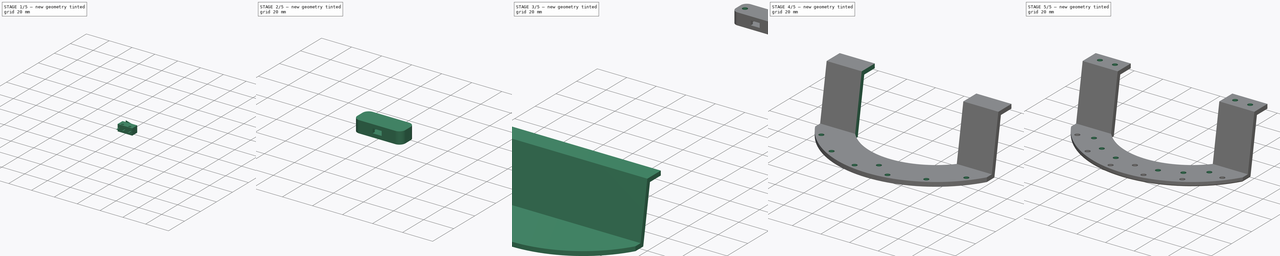
[diagram: build sequence overview — one tinted view per stage of 5, left to right]
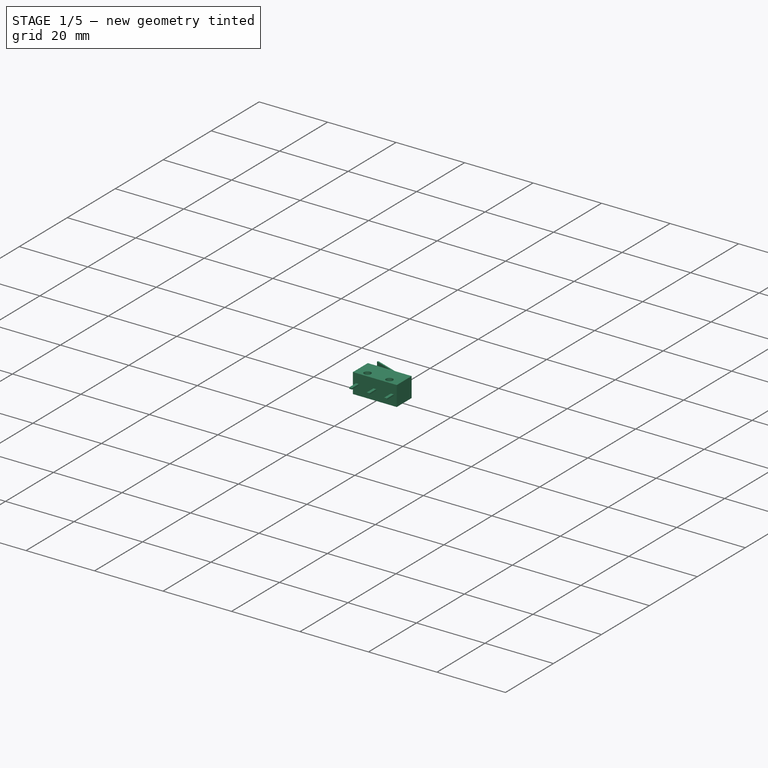
[diagram: stage 1 of 5 — iso view after this stage's code; geometry added in this stage tinted green]
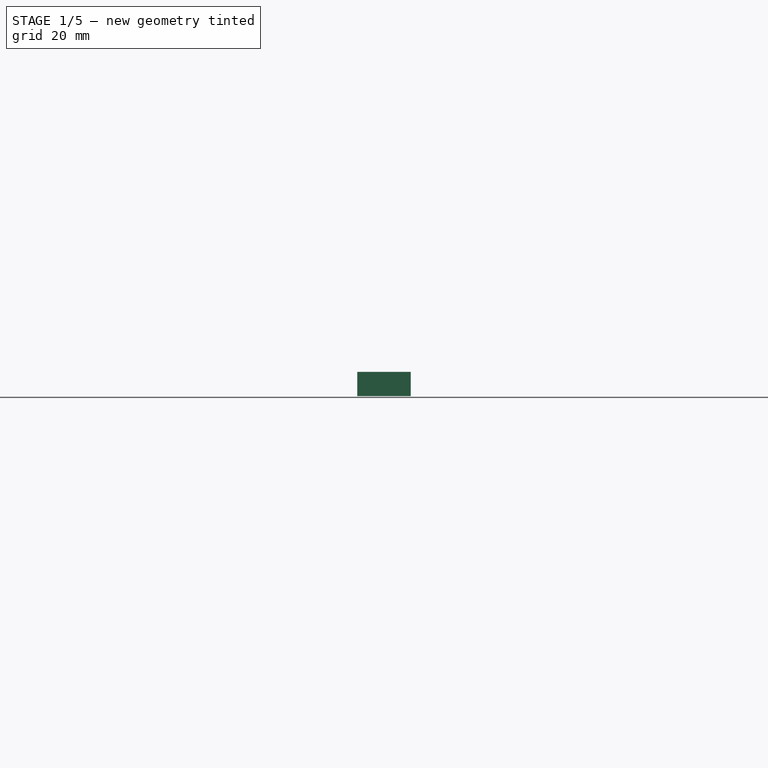
[diagram: stage 1 of 5 — front view after this stage's code; geometry added in this stage tinted green]
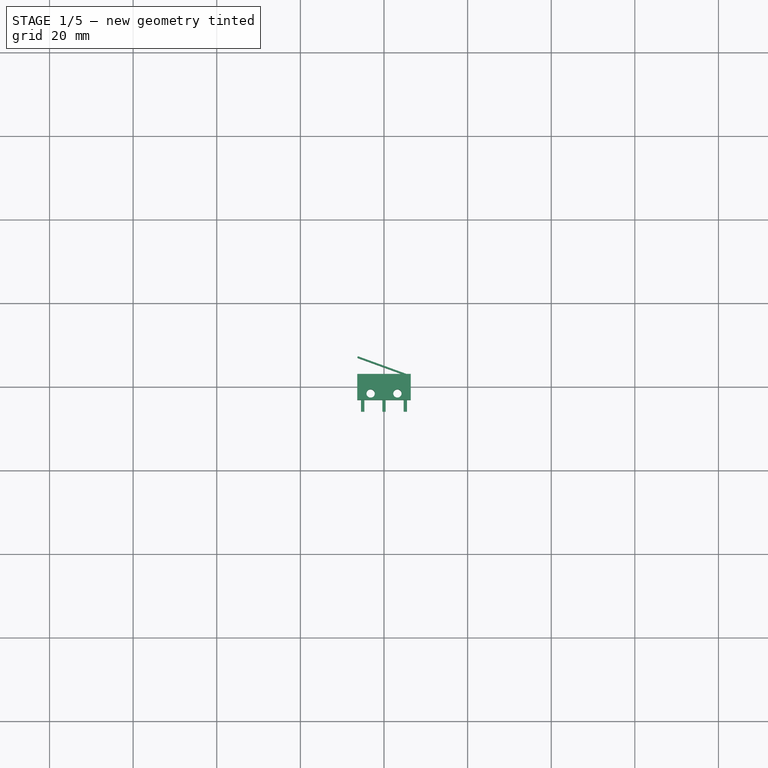
[diagram: stage 1 of 5 — top view after this stage's code; geometry added in this stage tinted green]
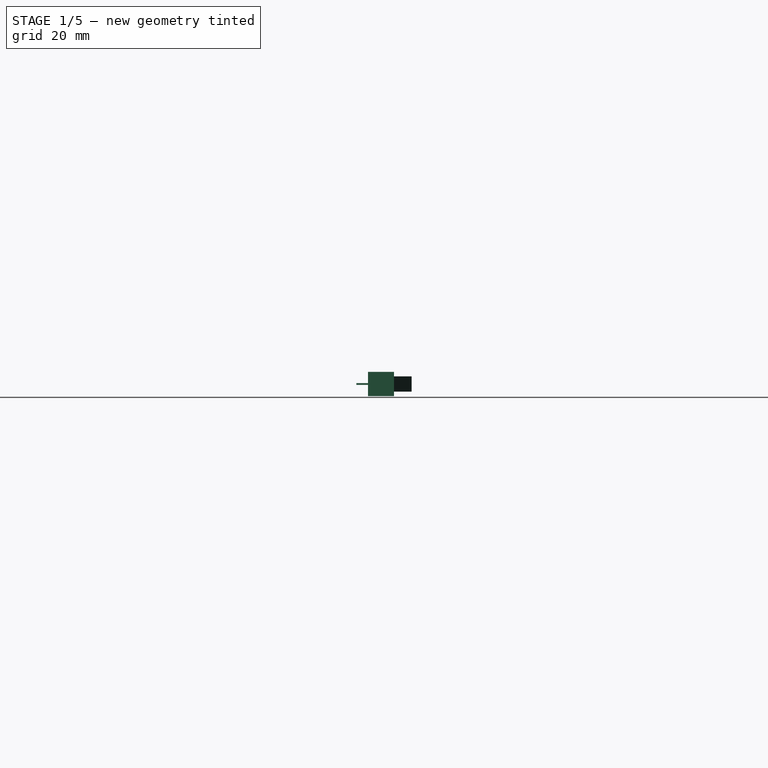
[diagram: stage 1 of 5 — right view after this stage's code; geometry added in this stage tinted green]
FCSTD DOCUMENT  (FreeCAD 2023.1102R14555 (Git shallow))
Label: Sensors
License: All rights reserved
objects: Part::Feature×35, Sketcher::SketchObject×15, PartDesign::Pocket×9, PartDesign::Pad×5, App::Part×5, PartDesign::Body×3, PartDesign::SubShapeBinder×3, PartDesign::Fillet×2, PartDesign::PolarPattern×2, PartDesign::Hole×1, Part::SubShapeBinder×1, PartDesign::Line×1
note: 130 computed .brp shape members not serialized (recipe doc carries the construction recipe); baked Part::Feature solids carry a one-line shape summary decoded from their .brp

FEATURE [Sketcher::SketchObject] Sketch
  ArcFitTolerance = 1e-06
  AttachmentSupport = -> [XY_Plane]
  ExternalBSplineMaxDegree = 5
  ExternalBSplineTolerance = 0.0001
  FixShape = 1
  FullyConstrained = true
  InternalTolerance = 1e-06
  InvalidShape = false
  MakeInternals = false
  MapMode = 5
  Support = -> [XY_Plane]
  TreeRank = 11
  ValidateShape = false
  sketch-geometry (4):
    g0: LineSegment StartX=-6.4 StartY=3.1 StartZ=0 EndX=6.4 EndY=3.1 EndZ=0
    g1: LineSegment StartX=6.4 StartY=3.1 StartZ=0 EndX=6.4 EndY=-3.1 EndZ=0
    g2: LineSegment StartX=6.4 StartY=-3.1 StartZ=0 EndX=-6.4 EndY=-3.1 EndZ=0
    g3: LineSegment StartX=-6.4 StartY=-3.1 StartZ=0 EndX=-6.4 EndY=3.1 EndZ=0
  constraints (11):
    c: Coincident(g0,g1)
    c: Coincident(g1,g2)
    c: Coincident(g2,g3)
    c: Coincident(g3,g0)
    c: Horizontal(g0)
    c: Horizontal(g2)
    c: Vertical(g1)
    c: Vertical(g3)
    c: Symmetric(g1,g0,g-1)
    c: DistanceX(g0,g0) = 12.8
    c: DistanceY(g3,g3) = 6.2
FEATURE [PartDesign::Pad] Pad
  AddSubType = 0
  AlongSketchNormal = false
  AutoTaperInnerAngle = true
  CheckUpToFaceLimits = true
  ClaimChildren = false
  Direction = (0,0,1)
  Fit = 0
  FitJoin = 0
  FixShape = 1
  InnerFit = 0
  InnerFitJoin = 0
  InvalidShape = false
  Length = 5.8
  Length2 = 10
  Linearize = true
  Midplane = true
  NewSolid = false
  Profile = -> Sketch
  ReferenceAxis = -> Sketch [N_Axis]
  Suppress = false
  TaperInnerAngle = 0
  TaperInnerAngleRev = 0
  TreeRank = 12
  Type = 0
  ValidateShape = true
  _ProfileBasedVersion = 1
FEATURE [Sketcher::SketchObject] Sketch001
  ArcFitTolerance = 1e-06
  AttachmentSupport = -> [Pad]
  ExternalBSplineMaxDegree = 5
  ExternalBSplineTolerance = 0.0001
  FixShape = 1
  FullyConstrained = true
  InternalTolerance = 1e-06
  InvalidShape = false
  MakeInternals = false
  MapMode = 5
  Placement = pos=(0,-3.1,0) rot=(1,0,0;1.5708rad)
  Support = -> [Pad]
  TreeRank = 13
  ValidateShape = false
  sketch-geometry (12):
    g0: LineSegment StartX=-5.5 StartY=0.2 StartZ=0 EndX=-4.7 EndY=0.2 EndZ=0
    g1: LineSegment StartX=-4.7 StartY=0.2 StartZ=0 EndX=-4.7 EndY=-0.2 EndZ=0
    g2: LineSegment StartX=-4.7 StartY=-0.2 StartZ=0 EndX=-5.5 EndY=-0.2 EndZ=0
    g3: LineSegment StartX=-5.5 StartY=-0.2 StartZ=0 EndX=-5.5 EndY=0.2 EndZ=0
    g4: LineSegment StartX=-0.4 StartY=0.2 StartZ=0 EndX=0.4 EndY=0.2 EndZ=0
    g5: LineSegment StartX=0.4 StartY=0.2 StartZ=0 EndX=0.4 EndY=-0.2 EndZ=0
    g6: LineSegment StartX=0.4 StartY=-0.2 StartZ=0 EndX=-0.4 EndY=-0.2 EndZ=0
    g7: LineSegment StartX=-0.4 StartY=-0.2 StartZ=0 EndX=-0.4 EndY=0.2 EndZ=0
    g8: LineSegment StartX=4.7 StartY=0.2 StartZ=0 EndX=5.5 EndY=0.2 EndZ=0
    g9: LineSegment StartX=5.5 StartY=0.2 StartZ=0 EndX=5.5 EndY=-0.2 EndZ=0
    g10: LineSegment StartX=5.5 StartY=-0.2 StartZ=0 EndX=4.7 EndY=-0.2 EndZ=0
    g11: LineSegment StartX=4.7 StartY=-0.2 StartZ=0 EndX=4.7 EndY=0.2 EndZ=0
  constraints (32):
    c: Coincident(g0,g1)
    c: Coincident(g1,g2)
    c: Coincident(g2,g3)
    c: Coincident(g3,g0)
    c: Horizontal(g0)
    c: Horizontal(g2)
    c: Vertical(g3)
    c: Coincident(g4,g5)
    c: Coincident(g5,g6)
    c: Coincident(g6,g7)
    c: Coincident(g7,g4)
    c: Horizontal(g4)
    c: Vertical(g7)
    c: Coincident(g8,g9)
    c: Coincident(g9,g10)
    c: Coincident(g10,g11)
    c: Coincident(g11,g8)
    c: Horizontal(g8)
    c: Horizontal(g10)
    c: Vertical(g9)
    c: Vertical(g11)
    c: Symmetric(g5,g4,g-1)
    c: Equal(g1,g7)
    c: Equal(g7,g11)
    c: Symmetric(g2,g9,g-2)
    c: Equal(g0,g4)
    c: Equal(g4,g8)
    c: Symmetric(g6,g5,g-2)
    c: DistanceX(g0,g8) = 11
    c: DistanceX(g4,g4) = 0.8
    c: DistanceY(g3,g3) = 0.4
    c: Symmetric(g1,g0,g-1)
FEATURE [PartDesign::Pad] Pad001
  AddSubType = 0
  AlongSketchNormal = false
  AutoTaperInnerAngle = true
  BaseFeature = -> Pad
  CheckUpToFaceLimits = true
  ClaimChildren = false
  Direction = (0,-1,2e-16)
  Fit = 0
  FitJoin = 0
  FixShape = 1
  InnerFit = 0
  InnerFitJoin = 0
  InvalidShape = false
  Length = 2.8
  Length2 = 10
  Linearize = true
  NewSolid = false
  Profile = -> Sketch001
  ReferenceAxis = -> Sketch001 [N_Axis]
  Suppress = false
  TaperInnerAngle = 0
  TaperInnerAngleRev = 0
  TreeRank = 14
  Type = 0
  ValidateShape = true
  _ProfileBasedVersion = 1
FEATURE [Sketcher::SketchObject] Sketch002
  ArcFitTolerance = 1e-06
  AttachmentSupport = -> [XY_Plane]
  ExternalBSplineMaxDegree = 5
  ExternalBSplineTolerance = 0.0001
  ExternalGeometry = -> [Pad001]
  FixShape = 1
  FullyConstrained = true
  InternalTolerance = 1e-06
  InvalidShape = false
  MakeInternals = false
  MapMode = 5
  Support = -> [XY_Plane]
  TreeRank = 15
  ValidateShape = false
  sketch-geometry (5):
    g0: LineSegment StartX=4.23048 StartY=3.1 StartZ=0 EndX=-6.4 EndY=6.96918 EndZ=0
    g1: LineSegment StartX=-6.4 StartY=6.96918 StartZ=0 EndX=-6.26319 EndY=7.34505 EndZ=0
    g2: LineSegment StartX=-6.26319 StartY=7.34505 StartZ=0 EndX=5.4 EndY=3.1 EndZ=0
    g3: LineSegment StartX=5.4 StartY=3.1 StartZ=0 EndX=4.23048 EndY=3.1 EndZ=0
    g4: LineSegment [constr] StartX=4.23048 StartY=3.1 StartZ=0 EndX=4.36729 EndY=3.47588 EndZ=0
  constraints (15):
    c: PointOnObject(g0,g-3)
    c: Coincident(g0,g1)
    c: Coincident(g1,g2)
    c: PointOnObject(g2,g-3)
    c: Coincident(g2,g3)
    c: Coincident(g3,g0)
    c: Coincident(g4,g0)
    c: PointOnObject(g4,g2)
    c: Perpendicular(g0,g4)
    c: Perpendicular(g0,g1)
    c: Perpendicular(g2,g1)
    c: Angle(g0,g-3) = 0.349066
    c: Distance(g1) = 0.4
    c: Vertical(g0,g-3)
    c: DistanceX(g2,g-3) = 1
FEATURE [PartDesign::Pad] Pad002
  AddSubType = 0
  AlongSketchNormal = false
  AutoTaperInnerAngle = true
  BaseFeature = -> Pad001
  CheckUpToFaceLimits = true
  ClaimChildren = false
  Direction = (0,0,1)
  Fit = 0
  FitJoin = 0
  FixShape = 1
  InnerFit = 0
  InnerFitJoin = 0
  InvalidShape = false
  Length = 3.65
  Length2 = 10
  Linearize = true
  Midplane = true
  NewSolid = false
  Profile = -> Sketch002
  ReferenceAxis = -> Sketch002 [N_Axis]
  Suppress = false
  TaperInnerAngle = 0
  TaperInnerAngleRev = 0
  TreeRank = 16
  Type = 0
  ValidateShape = true
  _ProfileBasedVersion = 1
FEATURE [Sketcher::SketchObject] Sketch003
  ArcFitTolerance = 1e-06
  AttachmentSupport = -> [Pad002]
  ExternalBSplineMaxDegree = 5
  ExternalBSplineTolerance = 0.0001
  ExternalGeometry = -> [Pad002]
  FixShape = 1
  FullyConstrained = true
  InternalTolerance = 1e-06
  InvalidShape = false
  MakeInternals = false
  MapMode = 5
  Placement = pos=(0,0,2.9) rot=(0,0,1;0rad)
  Support = -> [Pad002]
  TreeRank = 17
  ValidateShape = false
  sketch-geometry (4):
    g0: Circle CenterX=-3.2 CenterY=-1.57 CenterZ=0 NormalX=0 NormalY=0 NormalZ=1 AngleXU=0 Radius=1
    g1: Circle CenterX=3.2 CenterY=-1.57 CenterZ=0 NormalX=0 NormalY=0 NormalZ=1 AngleXU=0 Radius=1
    g2: LineSegment [constr] StartX=-2.2 StartY=-1.57 StartZ=0 EndX=2.2 EndY=-1.57 EndZ=0
    g3: LineSegment [constr] StartX=-3.2 StartY=-2.57 StartZ=0 EndX=-3.2 EndY=-3.1 EndZ=0
  constraints (13):
    c: Equal(g1,g0)
    c: Symmetric(g0,g1,g-2)
    c: PointOnObject(g2,g0)
    c: PointOnObject(g2,g1)
    c: Horizontal(g2)
    c: Horizontal(g2,g0)
    c: DistanceX(g2,g2) = 4.4
    c: Diameter(g0) = 2
    c: PointOnObject(g3,g0)
    c: PointOnObject(g3,g-3)
    c: Vertical(g3)
    c: Vertical(g3,g0)
    c: DistanceY(g3,g3) = 0.53
FEATURE [PartDesign::Pocket] Pocket
  AddSubType = 1
  AlongSketchNormal = false
  AutoTaperInnerAngle = true
  BaseFeature = -> Pad002
  CheckUpToFaceLimits = true
  ClaimChildren = false
  Direction = (0,0,-1)
  Fit = 0
  FitJoin = 0
  FixShape = 1
  InnerFit = 0
  InnerFitJoin = 0
  InvalidShape = false
  Length = 5
  Length2 = 10
  Linearize = true
  NewSolid = false
  Profile = -> Sketch003
  ReferenceAxis = -> Sketch003 [N_Axis]
  Suppress = false
  TaperInnerAngle = 0
  TaperInnerAngleRev = 0
  TreeRank = 18
  Type = 1
  ValidateShape = true
  _ProfileBasedVersion = 1
  _Version = 1
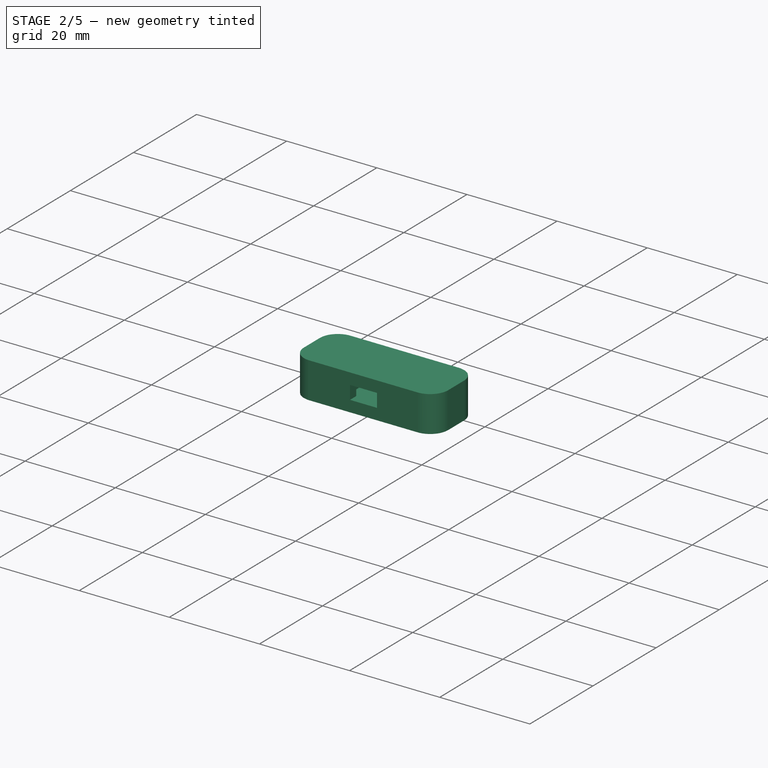
[diagram: stage 2 of 5 — iso view after this stage's code; geometry added in this stage tinted green]
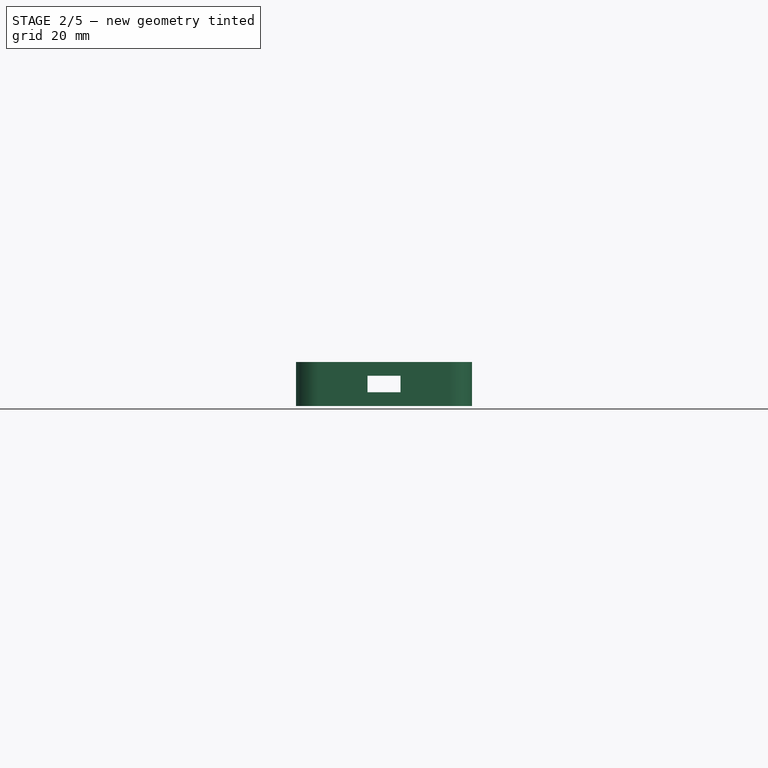
[diagram: stage 2 of 5 — front view after this stage's code; geometry added in this stage tinted green]
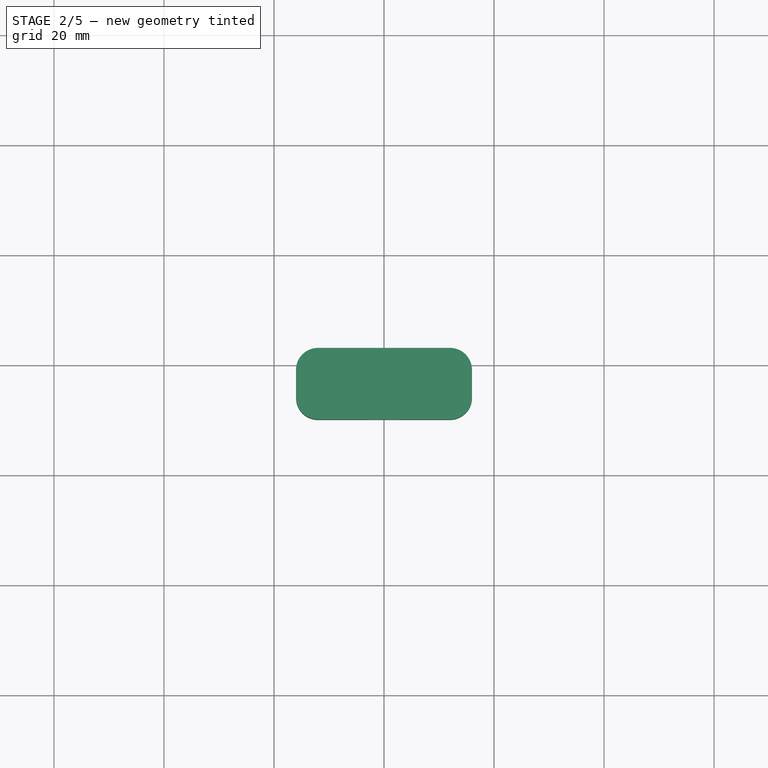
[diagram: stage 2 of 5 — top view after this stage's code; geometry added in this stage tinted green]
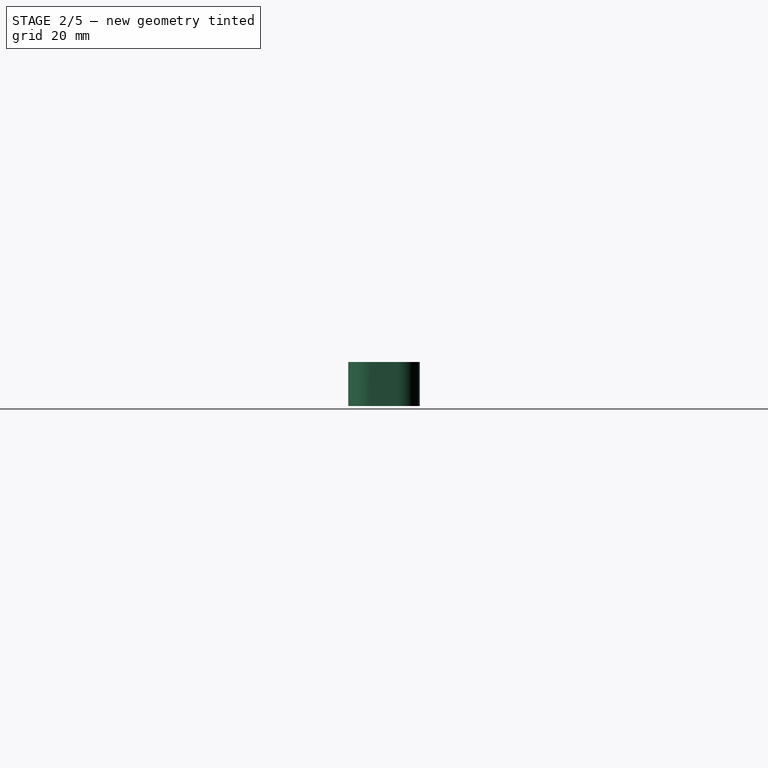
[diagram: stage 2 of 5 — right view after this stage's code; geometry added in this stage tinted green]
FEATURE [PartDesign::Body] Body  label="Youmile_sensor"
  AutoGroupSolids = false
  ClaimAllChildren = false
  ExportMode = 0
  FixShape = 1
  Group = -> [Sketch,Pad,Sketch001,Pad001,Sketch002,Pad002,Sketch003,Pocket]
  InvalidShape = false
  Origin = -> Origin
  Tip = -> Pocket
  TreeRank = 10
  ValidateShape = false
  _ExportChildren = -> [Pad,Pad001,Pad002,Pocket]
  _GroupVersion = 1
FEATURE [PartDesign::SubShapeBinder] Binder  label="Binder(Youmile_sensor)"
  BindCopyOnChange = 0
  BindMode = 0
  ClaimChildren = false
  Context = -> Body001 [Binder.]
  EdgeTolerance = 1e-06
  FillStyle = 0
  FixShape = 1
  Fuse = false
  InvalidShape = false
  MakeFace = true
  MergeEdges = true
  OffsetFill = false
  OffsetIntersection = false
  OffsetJoinType = 0
  OffsetOpenResult = false
  Outline = false
  PartialLoad = false
  Relative = true
  SplitEdges = false
  Support = -> [Body]
  TightBound = false
  TreeRank = 29
  ValidateShape = false
  _Version = 8
FEATURE [Sketcher::SketchObject] Sketch004
  ArcFitTolerance = 1e-06
  AttachmentSupport = -> [XY_Plane001]
  ExternalBSplineMaxDegree = 5
  ExternalBSplineTolerance = 0.0001
  ExternalGeometry = -> [Binder]
  FixShape = 1
  FullyConstrained = true
  InternalTolerance = 1e-06
  InvalidShape = false
  MakeInternals = false
  MapMode = 5
  Support = -> [XY_Plane001]
  TreeRank = 30
  ValidateShape = false
  sketch-geometry (7):
    g0: LineSegment StartX=-16 StartY=3.1 StartZ=0 EndX=16 EndY=3.1 EndZ=0
    g1: LineSegment StartX=16 StartY=3.1 StartZ=0 EndX=16 EndY=-9.9 EndZ=0
    g2: LineSegment StartX=16 StartY=-9.9 StartZ=0 EndX=-16 EndY=-9.9 EndZ=0
    g3: LineSegment StartX=-16 StartY=-9.9 StartZ=0 EndX=-16 EndY=3.1 EndZ=0
    g4: LineSegment [constr] StartX=-16 StartY=-3.4 StartZ=0 EndX=16 EndY=-3.4 EndZ=0
    g5: Circle [constr] CenterX=-11.5 CenterY=-3.4 CenterZ=0 NormalX=0 NormalY=0 NormalZ=1 AngleXU=0 Radius=3.15
    g6: Circle [constr] CenterX=11.5 CenterY=-3.4 CenterZ=0 NormalX=0 NormalY=0 NormalZ=1 AngleXU=0 Radius=3.15
  constraints (19):
    c: Coincident(g0,g1)
    c: Coincident(g1,g2)
    c: Coincident(g2,g3)
    c: Coincident(g3,g0)
    c: Horizontal(g0)
    c: Vertical(g1)
    c: Vertical(g3)
    c: PointOnObject(g-3,g0)
    c: PointOnObject(g4,g3)
    c: PointOnObject(g4,g1)
    c: Symmetric(g2,g0,g4)
    c: PointOnObject(g5,g4)
    c: Diameter(g5) = 6.3
    c: Equal(g5,g6)
    c: Symmetric(g5,g6,g-2)
    c: Symmetric(g2,g1,g-2)
    c: DistanceX(g2,g2) = 32
    c: DistanceX(g5,g6) = 23  'MountDist'
    c: DistanceY(g3,g3) = 13
FEATURE [PartDesign::Pad] Pad003
  AddSubType = 0
  AlongSketchNormal = false
  AutoTaperInnerAngle = true
  CheckUpToFaceLimits = true
  ClaimChildren = false
  Direction = (0,0,1)
  Fit = 0
  FitJoin = 0
  FixShape = 1
  InnerFit = 0
  InnerFitJoin = 0
  InvalidShape = false
  Length = 8
  Length2 = 10
  Linearize = true
  Midplane = true
  NewSolid = false
  Profile = -> Sketch004
  ReferenceAxis = -> Sketch004 [N_Axis]
  Suppress = false
  TaperInnerAngle = 0
  TaperInnerAngleRev = 0
  TreeRank = 31
  Type = 0
  ValidateShape = true
  _ProfileBasedVersion = 1
FEATURE [Sketcher::SketchObject] Sketch005
  ArcFitTolerance = 1e-06
  AttachmentSupport = -> [XY_Plane001]
  ExternalBSplineMaxDegree = 5
  ExternalBSplineTolerance = 0.0001
  ExternalGeometry = -> [Binder]
  FixShape = 1
  FullyConstrained = true
  InternalTolerance = 1e-06
  InvalidShape = false
  MakeInternals = false
  MapMode = 5
  Support = -> [XY_Plane001]
  TreeRank = 32
  ValidateShape = false
  sketch-geometry (4):
    g0: LineSegment StartX=-6.8 StartY=3.1 StartZ=0 EndX=6.8 EndY=3.1 EndZ=0
    g1: LineSegment StartX=6.8 StartY=3.1 StartZ=0 EndX=6.8 EndY=-7.9 EndZ=0
    g2: LineSegment StartX=6.8 StartY=-7.9 StartZ=0 EndX=-6.8 EndY=-7.9 EndZ=0
    g3: LineSegment StartX=-6.8 StartY=-7.9 StartZ=0 EndX=-6.8 EndY=3.1 EndZ=0
  constraints (11):
    c: Coincident(g0,g1)
    c: Coincident(g1,g2)
    c: Coincident(g2,g3)
    c: Coincident(g3,g0)
    c: Horizontal(g2)
    c: Vertical(g1)
    c: Vertical(g3)
    c: PointOnObject(g-3,g0)
    c: Symmetric(g0,g0,g-2)
    c: DistanceX(g0,g-3) = 0.4
    c: DistanceY(g3,g3) = 11
FEATURE [PartDesign::Pocket] Pocket001
  AddSubType = 1
  AlongSketchNormal = false
  AutoTaperInnerAngle = true
  BaseFeature = -> Pad003
  CheckUpToFaceLimits = true
  ClaimChildren = false
  Direction = (0,0,-1)
  Fit = 0
  FitJoin = 0
  FixShape = 1
  InnerFit = 0
  InnerFitJoin = 0
  InvalidShape = false
  Length = 6.5
  Length2 = 10
  Linearize = true
  Midplane = true
  NewSolid = false
  Profile = -> Sketch005
  ReferenceAxis = -> Sketch005 [N_Axis]
  Suppress = false
  TaperInnerAngle = 0
  TaperInnerAngleRev = 0
  TreeRank = 33
  Type = 0
  ValidateShape = true
  _ProfileBasedVersion = 1
  _Version = 1
FEATURE [PartDesign::Fillet] Fillet
  AddSubType = 0
  Base = -> Pocket001 [Edge4,Edge1,Edge16,Edge9]
  BaseFeature = -> Pocket001
  FixShape = 1
  InvalidShape = false
  NewSolid = false
  Radius = 4
  SupportTransform = false
  Suppress = false
  TreeRank = 34
  UseAllEdges = false
  ValidateShape = true
FEATURE [Sketcher::SketchObject] Sketch006
  ArcFitTolerance = 1e-06
  AttachmentSupport = -> [Fillet]
  ExternalBSplineMaxDegree = 5
  ExternalBSplineTolerance = 0.0001
  FixShape = 1
  FullyConstrained = true
  InternalTolerance = 1e-06
  InvalidShape = false
  MakeInternals = false
  MapMode = 5
  Placement = pos=(0,-7.9,0) rot=(0,0.707107,0.707107;3.14159rad)
  Support = -> [Fillet]
  TreeRank = 35
  ValidateShape = false
  sketch-geometry (4):
    g0: LineSegment StartX=-3 StartY=1.5 StartZ=0 EndX=3 EndY=1.5 EndZ=0
    g1: LineSegment StartX=3 StartY=1.5 StartZ=0 EndX=3 EndY=-1.5 EndZ=0
    g2: LineSegment StartX=3 StartY=-1.5 StartZ=0 EndX=-3 EndY=-1.5 EndZ=0
    g3: LineSegment StartX=-3 StartY=-1.5 StartZ=0 EndX=-3 EndY=1.5 EndZ=0
  constraints (11):
    c: Coincident(g0,g1)
    c: Coincident(g1,g2)
    c: Coincident(g2,g3)
    c: Coincident(g3,g0)
    c: Horizontal(g0)
    c: Horizontal(g2)
    c: Vertical(g1)
    c: Vertical(g3)
    c: Symmetric(g2,g0,g-1)
    c: DistanceY(g3,g3) = 3
    c: DistanceX(g0,g0) = 6
FEATURE [PartDesign::Pocket] Pocket002
  AddSubType = 1
  AlongSketchNormal = false
  AutoTaperInnerAngle = true
  BaseFeature = -> Fillet
  CheckUpToFaceLimits = true
  ClaimChildren = false
  Direction = (0,-1,2e-16)
  Fit = 0
  FitJoin = 0
  FixShape = 1
  InnerFit = 0
  InnerFitJoin = 0
  InvalidShape = false
  Length = 5
  Length2 = 10
  Linearize = true
  NewSolid = false
  Profile = -> Sketch006
  ReferenceAxis = -> Sketch006 [N_Axis]
  Suppress = false
  TaperInnerAngle = 0
  TaperInnerAngleRev = 0
  TreeRank = 36
  Type = 1
  ValidateShape = true
  _ProfileBasedVersion = 1
  _Version = 1
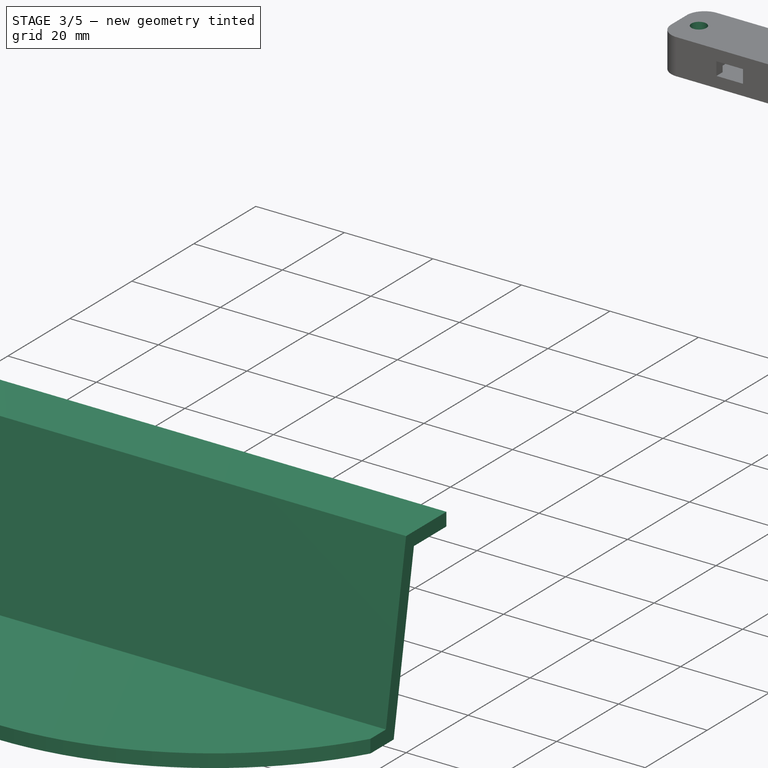
[diagram: stage 3 of 5 — iso view after this stage's code; geometry added in this stage tinted green]
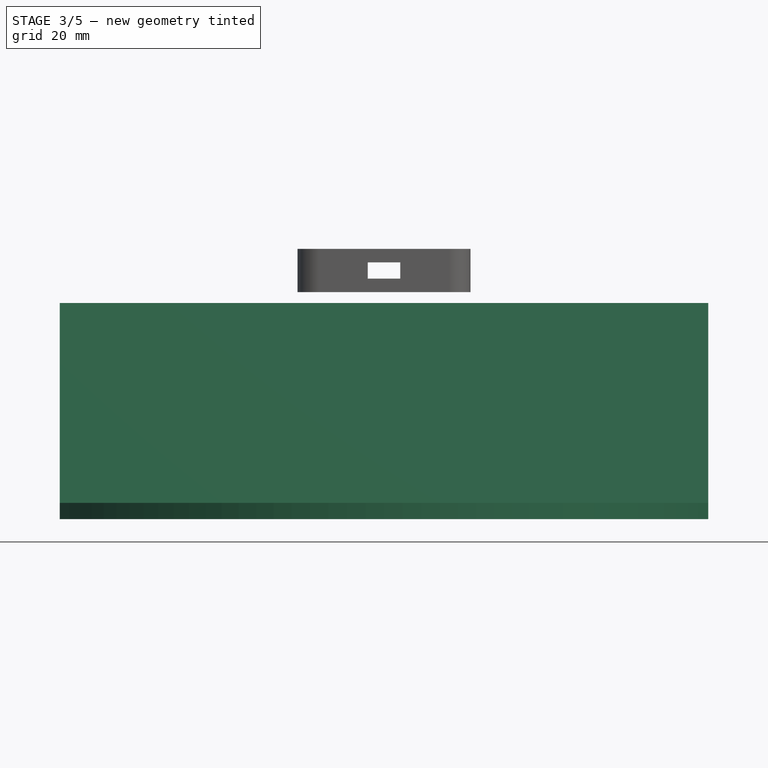
[diagram: stage 3 of 5 — front view after this stage's code; geometry added in this stage tinted green]
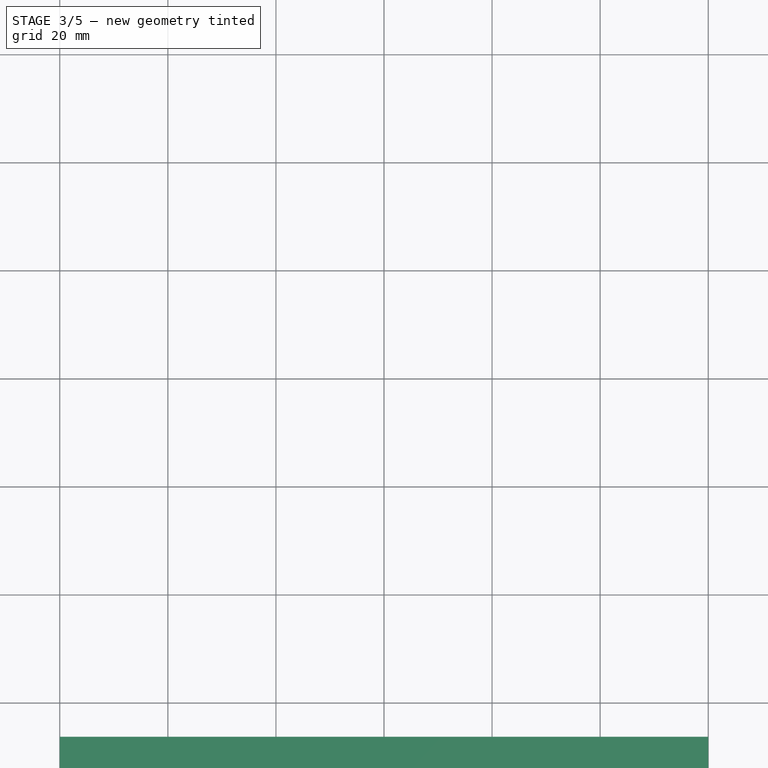
[diagram: stage 3 of 5 — top view after this stage's code; geometry added in this stage tinted green]
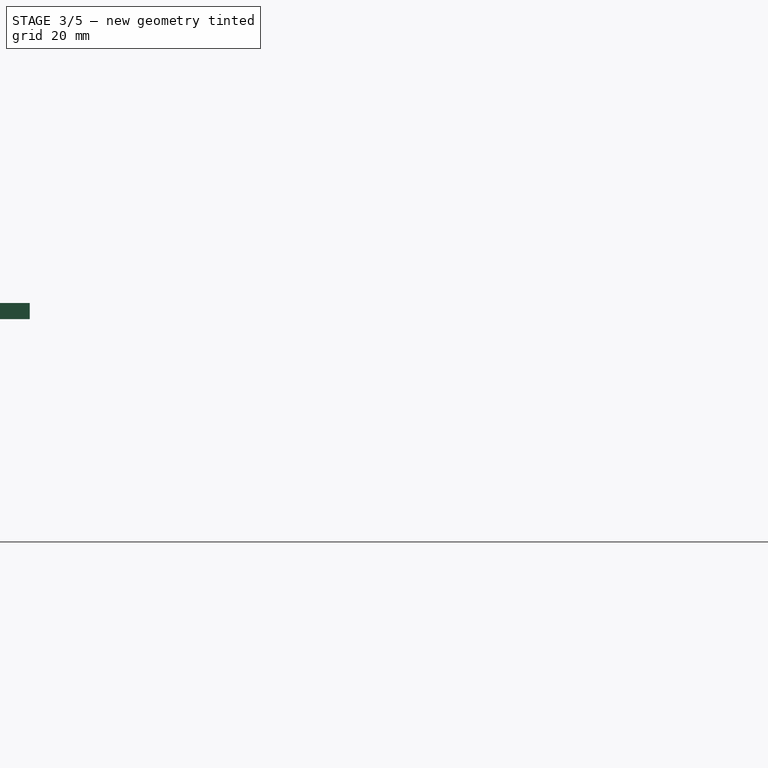
[diagram: stage 3 of 5 — right view after this stage's code; geometry added in this stage tinted green]
FEATURE [Sketcher::SketchObject] Sketch007
  ArcFitTolerance = 1e-06
  AttachmentSupport = -> [Pocket002]
  ExternalBSplineMaxDegree = 5
  ExternalBSplineTolerance = 0.0001
  ExternalGeometry = -> [Pad003]
  FixShape = 1
  FullyConstrained = true
  InternalTolerance = 1e-06
  InvalidShape = false
  MakeInternals = false
  MapMode = 5
  Placement = pos=(0,0,4) rot=(0,0,1;0rad)
  Support = -> [Pocket002]
  TreeRank = 37
  ValidateShape = false
  expr: Constraints[6] = <<Sketch004>>.Constraints.MountDist
  sketch-geometry (3):
    g0: LineSegment [constr] StartX=-16 StartY=-3.4 StartZ=0 EndX=16 EndY=-3.4 EndZ=0
    g1: Circle CenterX=-11.5 CenterY=-3.4 CenterZ=0 NormalX=0 NormalY=0 NormalZ=1 AngleXU=0 Radius=1.5
    g2: Circle CenterX=11.5 CenterY=-3.4 CenterZ=0 NormalX=0 NormalY=0 NormalZ=1 AngleXU=0 Radius=1.5
  constraints (8):
    c: PointOnObject(g0,g-3)
    c: PointOnObject(g0,g-4)
    c: Symmetric(g-3,g-3,g0)
    c: PointOnObject(g1,g0)
    c: Equal(g2,g1)
    c: Diameter(g1) = 3
    c: DistanceX(g1,g2) = 23
    c: Symmetric(g1,g2,g-2)
FEATURE [PartDesign::Hole] Hole
  AddSubType = 1
  BaseFeature = -> Pocket002
  ClaimChildren = false
  CustomThreadClearance = 0
  Depth = 25
  DepthType = 0
  Diameter = 3.4
  DrillForDepth = false
  DrillPoint = 1
  DrillPointAngle = 118
  Fit = 0
  FitJoin = 0
  FixShape = 1
  HoleCutCountersinkAngle = 90
  HoleCutCustomValues = false
  HoleCutDepth = 0
  HoleCutDiameter = 6.1
  HoleCutType = 0
  InnerFit = 0
  InnerFitJoin = 0
  InvalidShape = false
  Linearize = true
  ModelThread = false
  NewSolid = false
  Profile = -> Sketch007
  Suppress = false
  Tapered = false
  TaperedAngle = 90
  ThreadClass = 0
  ThreadDepth = 25
  ThreadDepthType = 0
  ThreadDirection = 0
  ThreadFit = 0
  ThreadSize = 9
  ThreadType = 1
  Threaded = false
  TreeRank = 38
  UseCustomThreadClearance = false
  ValidateShape = true
  _ProfileBasedVersion = 1
FEATURE [PartDesign::Body] Body001  label="SensorCage"
  AutoGroupSolids = false
  ClaimAllChildren = false
  ExportMode = 0
  FixShape = 1
  Group = -> [Binder,Sketch004,Pad003,Sketch005,Pocket001,Fillet,Sketch006,Pocket002,Sketch007,Hole]
  InvalidShape = false
  Origin = -> Origin001
  Tip = -> Hole
  TreeRank = 28
  ValidateShape = false
  _ExportChildren = -> [Binder,Pad003,Pocket001,Fillet,Pocket002,Hole]
  _GroupVersion = 1
FEATURE [Part::Feature] Solid  label="BackWheel"
  FixShape = 1
  InvalidShape = false
  TreeRank = 57
  ValidateShape = false
  shape: bbox 32.63 x 28.1 x 50.09 mm, 63 faces (baked)
FEATURE [Part::Feature] Solid001  label="BasePlate"
  FixShape = 1
  InvalidShape = false
  TreeRank = 58
  ValidateShape = false
  shape: bbox 120 x 200 x 12.6 mm, 974 faces (baked)
FEATURE [Part::Feature] Solid002  label="RightMotorMount"
  FixShape = 1
  InvalidShape = false
  TreeRank = 59
  ValidateShape = false
  shape: bbox 18.85 x 50 x 38.13 mm, 55 faces (baked)
FEATURE [Part::Feature] Solid003  label="LeftMotorMount"
  FixShape = 1
  InvalidShape = false
  TreeRank = 60
  ValidateShape = false
  shape: bbox 18.85 x 50 x 38.13 mm, 58 faces (baked)
FEATURE [Part::Feature] Solid004  label="BatteryBay"
  FixShape = 1
  InvalidShape = false
  TreeRank = 61
  ValidateShape = false
  shape: bbox 80 x 113 x 20 mm, 162 faces (baked)
FEATURE [Part::Feature] Compound  label="BallCap"
  FixShape = 1
  InvalidShape = false
  TreeRank = 62
  ValidateShape = false
  shape: bbox 32.98 x 32.98 x 18.48 mm, 2071 faces, 2 solids (baked)
FEATURE [Part::Feature] Solid005  label="InsertPinForBall_16.0 mm"
  FixShape = 1
  InvalidShape = false
  TreeRank = 63
  ValidateShape = false
  shape: bbox 9.6 x 9.6 x 22.1 mm, 3 faces (baked)
FEATURE [Part::Feature] Solid006  label="Varta_10Ah_5797610111"
  FixShape = 1
  InvalidShape = false
  Placement = pos=(0,-19,1) rot=(0,0,1;0rad)
  TreeRank = 64
  ValidateShape = false
  shape: bbox 138 x 73 x 15 mm, 6 faces (baked)
FEATURE [Part::Feature] Solid007  label="Pins_3fach_q_001"
  FixShape = 1
  InvalidShape = false
  Placement = pos=(64.19,-23.29,3.21) rot=(0,0,1;0rad)
  TreeRank = 74
  ValidateShape = false
  shape: bbox 5.08 x 7.647 x 11.94 mm, 248 faces (baked)
FEATURE [Part::Feature] Solid008  label="Pins_3fach_q_002"
  FixShape = 1
  InvalidShape = false
  Placement = pos=(15.78,-9.32,3.21) rot=(0,0,1;1.5708rad)
  TreeRank = 75
  ValidateShape = false
  shape: bbox 7.647 x 5.08 x 11.94 mm, 248 faces (baked)
FEATURE [Part::Feature] Compound001  label="Ardi_UNO_Platine_001"
  FixShape = 1
  InvalidShape = false
  TreeRank = 76
  ValidateShape = false
  shape: bbox 69 x 53.4 x 1.61 mm, 2942 faces, 67 solids (baked)
FEATURE [Part::Feature] Solid009  label="Headers_digital_001"
  FixShape = 1
  InvalidShape = false
  TreeRank = 77
  ValidateShape = false
  shape: bbox 47.8 x 2.55 x 10.95 mm, 1363 faces (baked)
FEATURE [Part::Feature] Solid010  label="Headers_Analog_001"
  FixShape = 1
  InvalidShape = false
  TreeRank = 78
  ValidateShape = false
  shape: bbox 38.85 x 2.55 x 10.95 mm, 1405 faces (baked)
FEATURE [Part::Feature] Solid011  label="atmega328_socket_001"
  FixShape = 1
  InvalidShape = false
  TreeRank = 79
  ValidateShape = false
  shape: bbox 35.5 x 10 x 6.2 mm, 768 faces (baked)
FEATURE [Part::Feature] Solid012  label="atmega328_001"
  FixShape = 1
  InvalidShape = false
  TreeRank = 80
  ValidateShape = false
  shape: bbox 35.35 x 8.183 x 5.992 mm, 1260 faces (baked)
FEATURE [Part::Feature] Solid013  label="resetButton UNO_001"
  FixShape = 1
  InvalidShape = false
  TreeRank = 81
  ValidateShape = false
  shape: bbox 8.5 x 6.5 x 3.8 mm, 69 faces (baked)
FEATURE [Part::Feature] Compound002  label="USB_typeB_001"
  FixShape = 1
  InvalidShape = false
  Placement = pos=(8.29,-16.56,3.2) rot=(0,0,-1;1.5708rad)
  TreeRank = 82
  ValidateShape = false
  shape: bbox 16.5 x 12.05 x 13.97 mm, 568 faces, 6 solids (baked)
FEATURE [Part::Feature] Solid014  label="Stromanschluss_arduino UNO_001"
  FixShape = 1
  InvalidShape = false
  TreeRank = 95
  ValidateShape = false
  shape: bbox 14.42 x 9.21 x 13 mm, 114 faces (baked)
FEATURE [Part::Feature] Solid015  label="Kondensator_A8-47-25V_001"
  FixShape = 1
  InvalidShape = false
  Placement = pos=(-0.25,0,0) rot=(0,0,1;0rad)
  TreeRank = 96
  ValidateShape = false
  shape: bbox 15.33 x 15.32 x 5 mm, 256 faces (baked)
FEATURE [Part::Feature] Solid016  label="Kondensator_A8-47-25V_002"
  FixShape = 1
  InvalidShape = false
  Placement = pos=(6.5,0,0) rot=(0,0,1;0rad)
  TreeRank = 97
  ValidateShape = false
  shape: bbox 15.33 x 15.32 x 5 mm, 256 faces (baked)
FEATURE [Part::Feature] Solid017  label="Quarz_Arduino_16_001"
  FixShape = 1
  InvalidShape = false
  TreeRank = 98
  ValidateShape = false
  shape: bbox 12.87 x 4.871 x 5.2 mm, 172 faces (baked)
FEATURE [Part::Feature] Solid018  label="Transistor Arduino UNO_001"
  FixShape = 1
  InvalidShape = false
  TreeRank = 99
  ValidateShape = false
  shape: bbox 6.8 x 6.5 x 1.6 mm, 68 faces (baked)
FEATURE [Part::Feature] Solid019  label="LED Arduino UNO gelb_001"
  FixShape = 1
  InvalidShape = false
  TreeRank = 100
  ValidateShape = false
  shape: bbox 2 x 1 x 0.5 mm, 25 faces (baked)
FEATURE [Part::Feature] Solid020  label="LED Arduino UNO gelb_002"
  FixShape = 1
  InvalidShape = false
  Placement = pos=(0,-6,0) rot=(0,0,1;0rad)
  TreeRank = 101
  ValidateShape = false
  shape: bbox 2 x 1 x 0.5 mm, 25 faces (baked)
FEATURE [Part::Feature] Solid021  label="LED Arduino UNO gelb_003"
  FixShape = 1
  InvalidShape = false
  Placement = pos=(0,-8,0) rot=(0,0,1;0rad)
  TreeRank = 102
  ValidateShape = false
  shape: bbox 2 x 1 x 0.5 mm, 25 faces (baked)
FEATURE [Part::Feature] Solid022  label="LED Arduino UNO grün_001"
  FixShape = 1
  InvalidShape = false
  Placement = pos=(30.5,-6,0) rot=(0,0,1;0rad)
  TreeRank = 103
  ValidateShape = false
  shape: bbox 2 x 1 x 0.5 mm, 25 faces (baked)
FEATURE [Part::Feature] Solid023  label="achterTeil_001"
  FixShape = 1
  InvalidShape = false
  TreeRank = 104
  ValidateShape = false
  shape: bbox 3.2 x 4.7 x 0.801 mm, 69 faces (baked)
FEATURE [App::Part] Part  label="Arduino"
  ClaimAllChildren = false
  ExportMode = 1
  Group = -> [Solid007,Solid008,Compound001,Solid009,Solid010,Solid011,Solid012,Solid013,Compound002,Solid014,Solid015,Solid016,Solid017,Solid018,Solid019,Solid020,Solid021,Solid022,Solid023]
  Origin = -> Origin003
  Placement = pos=(-33,-10,2) rot=(0,0,1;0rad)
  TreeRank = 106
  _ExportChildren = -> [Solid007,Solid008,Compound001,Solid009,Solid010,Solid011,Solid012,Solid013,Compound002,Solid014,Solid015,Solid016,Solid017,Solid018,Solid019,Solid020,Solid021,Solid022,Solid023]
  _GroupVersion = 1
FEATURE [Part::Feature] Solid024  label="L298N v2"
  FixShape = 1
  InvalidShape = false
  Placement = pos=(-5.5e-15,-184.027,24) rot=(0,0,1;3.14159rad)
  TreeRank = 120
  ValidateShape = false
  shape: bbox 43 x 43 x 28.01 mm, 1283 faces (baked)
FEATURE [Part::Feature] Compound003  label="COMPOUND"
  FixShape = 1
  InvalidShape = false
  TreeRank = 121
  ValidateShape = false
  shape: bbox 56 x 8.41 x 86 mm, 5534 faces, 3 solids (baked)
FEATURE [Part::Feature] Compound004  label="COMPOUND"
  FixShape = 1
  InvalidShape = false
  TreeRank = 122
  ValidateShape = false
  shape: bbox 0.07768 x 2e-07 x 76.44 mm, 0 faces, 0 solids (baked)
FEATURE [App::Part] Part001  label="Breadboard 400"
  ClaimAllChildren = false
  ExportMode = 1
  Group = -> [Compound003,Compound004]
  Origin = -> Origin004
  Placement = pos=(43,-68.795,-0.205) rot=(0.57735,-0.57735,-0.57735;2.0944rad)
  TreeRank = 124
  _ExportChildren = -> [Compound003,Compound004]
  _GroupVersion = 1
FEATURE [Part::Feature] Compound005  label="YG2900_10V_800gf/cm v006"
  FixShape = 1
  InvalidShape = false
  Placement = pos=(11.5,-104.775,-9.025) rot=(-1,0,0;1.5708rad)
  TreeRank = 125
  ValidateShape = false
  shape: bbox 37.1 x 70.35 x 24.25 mm, 606 faces, 10 solids (baked)
FEATURE [Part::Feature] Solid025  label="LeftWheel001"
  FixShape = 1
  InvalidShape = false
  TreeRank = 126
  ValidateShape = false
  shape: bbox 30.2 x 63.2 x 63.2 mm, 53 faces (baked)
FEATURE [App::Part] Part002  label="Motor_and_wheel_right"
  ClaimAllChildren = false
  ExportMode = 1
  Group = -> [Compound005,Solid025]
  Origin = -> Origin005
  Placement = pos=(-11,-28.9,-44.4) rot=(0,1,0;3.14159rad)
  TreeRank = 128
  _ExportChildren = -> [Compound005,Solid025]
  _GroupVersion = 1
FEATURE [Part::Feature] Compound006  label="YG2900_10V_800gf/cm v5"
  FixShape = 1
  InvalidShape = false
  Placement = pos=(11.5,-104.775,-9.025) rot=(-1,0,0;1.5708rad)
  TreeRank = 129
  ValidateShape = false
  shape: bbox 37.1 x 70.35 x 24.25 mm, 606 faces, 10 solids (baked)
FEATURE [Part::Feature] Solid026  label="LeftWheel"
  FixShape = 1
  InvalidShape = false
  TreeRank = 130
  ValidateShape = false
  shape: bbox 30.2 x 63.2 x 63.2 mm, 53 faces (baked)
FEATURE [App::Part] Part003  label="Motor_and_wheel_left"
  ClaimAllChildren = false
  ExportMode = 1
  Group = -> [Compound006,Solid026]
  Origin = -> Origin006
  Placement = pos=(9.9,-26.9,-10.7) rot=(0,0,1;0rad)
  TreeRank = 132
  _ExportChildren = -> [Compound006,Solid026]
  _GroupVersion = 1
FEATURE [Part::Feature] Solid027  label="Kula"
  FixShape = 1
  InvalidShape = false
  Placement = pos=(0,-16,-57.7) rot=(0,0,1;0rad)
  TreeRank = 142
  ValidateShape = false
  shape: bbox 16.19 x 16.19 x 16.19 mm, 1 faces (baked)
FEATURE [App::Part] Part004  label="RobotV2"
  ClaimAllChildren = false
  ExportMode = 1
  Group = -> [Solid,Solid001,Solid002,Solid003,Solid004,Compound,Solid005,Solid006,Part,Solid024,Part001,Part002,Part003,Solid027]
  Origin = -> Origin007
  TreeRank = 144
  _ExportChildren = -> [Solid,Solid001,Solid002,Solid003,Solid004,Compound,Solid005,Solid006,Part,Solid024,Part001,Part002,Part003,Solid027]
  _GroupVersion = 1
FEATURE [PartDesign::SubShapeBinder] Binder001  label="Binder001(RobotV2)"
  BindCopyOnChange = 0
  BindMode = 0
  ClaimChildren = false
  Context = -> Body002 [Binder001.]
  EdgeTolerance = 1e-06
  FillStyle = 0
  FixShape = 1
  Fuse = false
  InvalidShape = false
  MakeFace = true
  MergeEdges = true
  OffsetFill = false
  OffsetIntersection = false
  OffsetJoinType = 0
  OffsetOpenResult = false
  Outline = false
  PartialLoad = false
  Relative = true
  SplitEdges = false
  Support = -> [Part004]
  TightBound = false
  TreeRank = 199
  ValidateShape = false
  _Version = 8
FEATURE [Sketcher::SketchObject] Sketch008
  ArcFitTolerance = 1e-06
  AttachmentSupport = -> [YZ_Plane002]
  ExternalBSplineMaxDegree = 5
  ExternalBSplineTolerance = 0.0001
  ExternalGeometry = -> [Binder001]
  FixShape = 1
  FullyConstrained = true
  InternalTolerance = 1e-06
  InvalidShape = false
  MakeInternals = false
  MapMode = 5
  Placement = pos=(0,0,0) rot=(0.57735,0.57735,0.57735;2.0944rad)
  Support = -> [YZ_Plane002]
  TreeRank = 200
  ValidateShape = false
  sketch-geometry (11):
    g0: LineSegment StartX=-187 StartY=-9 StartZ=0 EndX=-197.483 EndY=-9 EndZ=0
    g1: LineSegment StartX=-197.483 StartY=-9 StartZ=0 EndX=-204.007 EndY=-46 EndZ=0
    g2: LineSegment StartX=-204.007 StartY=-46 StartZ=0 EndX=-246.524 EndY=-46 EndZ=0
    g3: LineSegment StartX=-246.524 StartY=-46 StartZ=0 EndX=-246.524 EndY=-43 EndZ=0
    g4: LineSegment StartX=-246.524 StartY=-43 StartZ=0 EndX=-206.524 EndY=-43 EndZ=0
    g5: LineSegment StartX=-206.524 StartY=-43 StartZ=0 EndX=-200 EndY=-6 EndZ=0
    g6: LineSegment StartX=-200 StartY=-6 StartZ=0 EndX=-187 EndY=-6 EndZ=0
    g7: LineSegment StartX=-187 StartY=-6 StartZ=0 EndX=-187 EndY=-9 EndZ=0
    g8: GeomPoint [constr] X=-206.524 Y=-43 Z=0
    g9: LineSegment [constr] StartX=-206.524 StartY=-43 StartZ=0 EndX=-203.57 EndY=-43.5209 EndZ=0
    g10: LineSegment [constr] StartX=-197.483 StartY=-9 StartZ=0 EndX=-200.437 EndY=-8.47906 EndZ=0
  constraints (29):
    c: Horizontal(g0)
    c: Coincident(g0,g1)
    c: Coincident(g1,g2)
    c: Horizontal(g2)
    c: Coincident(g2,g3)
    c: Vertical(g3)
    c: Coincident(g3,g4)
    c: Horizontal(g4)
    c: Coincident(g4,g5)
    c: Coincident(g5,g6)
    c: Coincident(g6,g7)
    c: Coincident(g7,g0)
    c: Vertical(g7)
    c: DistanceY(g7,g7) = 3
    c: Coincident(g8,g4)
    c: Coincident(g9,g4)
    c: PointOnObject(g9,g1)
    c: Perpendicular(g5,g9)
    c: Coincident(g10,g0)
    c: PointOnObject(g10,g5)
    c: Perpendicular(g1,g10)
    c: Equal(g9,g10)
    c: Equal(g7,g3)
    c: Equal(g9,g3)
    c: Angle(g1,g0) = 1.74533
    c: DistanceY(g1,g5) = 40
    c: Coincident(g-5,g6)
    c: Coincident(g5,g-3)
    c: DistanceX(g4,g4) = 40
FEATURE [PartDesign::Pad] Pad004
  AddSubType = 0
  AlongSketchNormal = false
  AutoTaperInnerAngle = true
  CheckUpToFaceLimits = true
  ClaimChildren = false
  Direction = (1,-2e-16,3e-16)
  Fit = 0
  FitJoin = 0
  FixShape = 1
  InnerFit = 0
  InnerFitJoin = 0
  InvalidShape = false
  Length = 120
  Length2 = 10
  Linearize = true
  Midplane = true
  NewSolid = false
  Profile = -> Sketch008
  ReferenceAxis = -> Sketch008 [N_Axis]
  Suppress = false
  TaperInnerAngle = 0
  TaperInnerAngleRev = 0
  TreeRank = 201
  Type = 0
  ValidateShape = true
  _ProfileBasedVersion = 1
FEATURE [Sketcher::SketchObject] Sketch009
  ArcFitTolerance = 1e-06
  AttachmentSupport = -> [Pad004]
  ExternalBSplineMaxDegree = 5
  ExternalBSplineTolerance = 0.0001
  ExternalGeometry = -> [Pad004]
  FixShape = 1
  FullyConstrained = true
  InternalTolerance = 1e-06
  InvalidShape = false
  MakeInternals = false
  MapMode = 5
  Placement = pos=(1.19e-14,-9.5e-15,-43) rot=(0,0,1;0rad)
  Support = -> [Pad004]
  TreeRank = 202
  ValidateShape = false
  sketch-geometry (4):
    g0: ArcOfCircle CenterX=0 CenterY=-176.524 CenterZ=0 NormalX=0 NormalY=0 NormalZ=1 AngleXU=0 Radius=69.4622 StartAngle=3.66967 EndAngle=5.75511
    g1: LineSegment StartX=-60 StartY=-211.524 StartZ=0 EndX=-60 EndY=-246.524 EndZ=0
    g2: LineSegment StartX=-60 StartY=-246.524 StartZ=0 EndX=60 EndY=-246.524 EndZ=0
    g3: LineSegment StartX=60 StartY=-246.524 StartZ=0 EndX=60 EndY=-211.524 EndZ=0
  constraints (11):
    c: PointOnObject(g0,g-2)
    c: PointOnObject(g0,g-5)
    c: PointOnObject(g0,g-4)
    c: DistanceY(g-5,g0) = 70
    c: DistanceY(g0,g-5) = 5
    c: Coincident(g0,g1)
    c: Coincident(g1,g2)
    c: Coincident(g2,g-4)
    c: Coincident(g2,g3)
    c: Coincident(g3,g0)
    c: Coincident(g1,g-5)
FEATURE [PartDesign::Pocket] Pocket003
  AddSubType = 1
  AlongSketchNormal = false
  AutoTaperInnerAngle = true
  BaseFeature = -> Pad004
  CheckUpToFaceLimits = true
  ClaimChildren = false
  Direction = (3e-16,-2e-16,-1)
  Fit = 0
  FitJoin = 0
  FixShape = 1
  InnerFit = 0
  InnerFitJoin = 0
  InvalidShape = false
  Length = 5
  Length2 = 10
  Linearize = true
  NewSolid = false
  Profile = -> Sketch009
  ReferenceAxis = -> Sketch009 [N_Axis]
  Suppress = false
  TaperInnerAngle = 0
  TaperInnerAngleRev = 0
  TreeRank = 203
  Type = 1
  ValidateShape = true
  _ProfileBasedVersion = 1
  _Version = 1
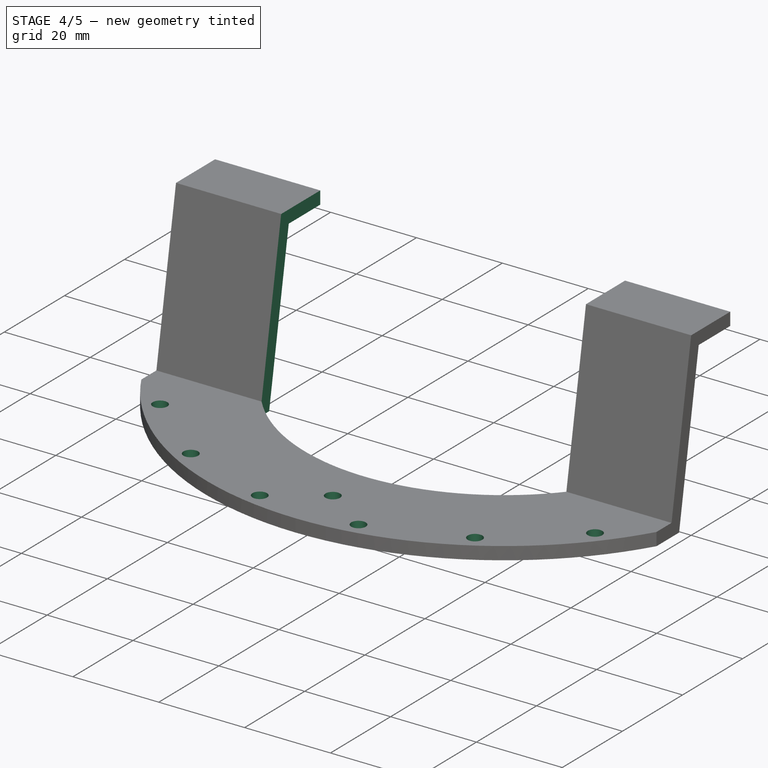
[diagram: stage 4 of 5 — iso view after this stage's code; geometry added in this stage tinted green]
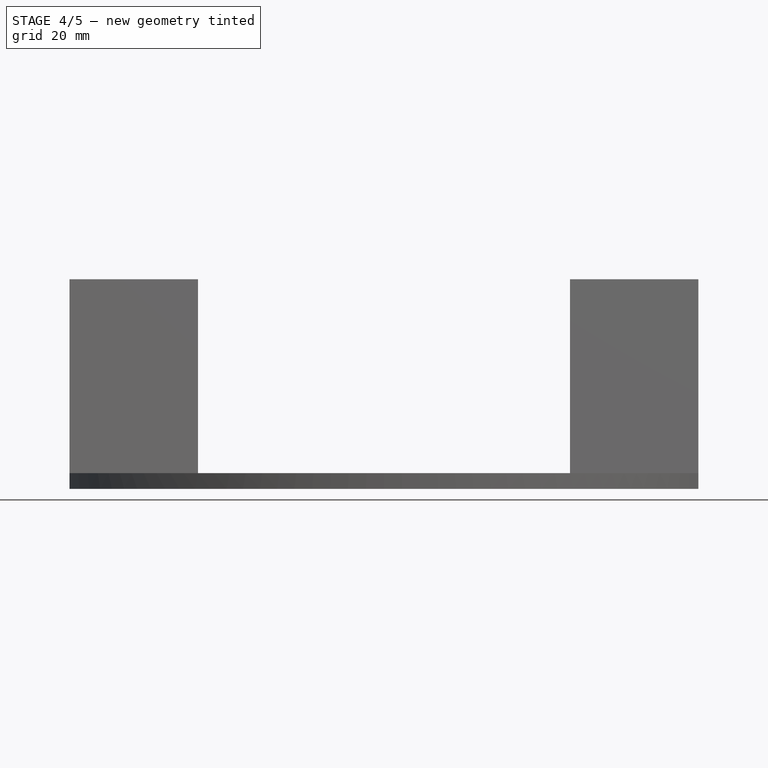
[diagram: stage 4 of 5 — front view after this stage's code; geometry added in this stage tinted green]
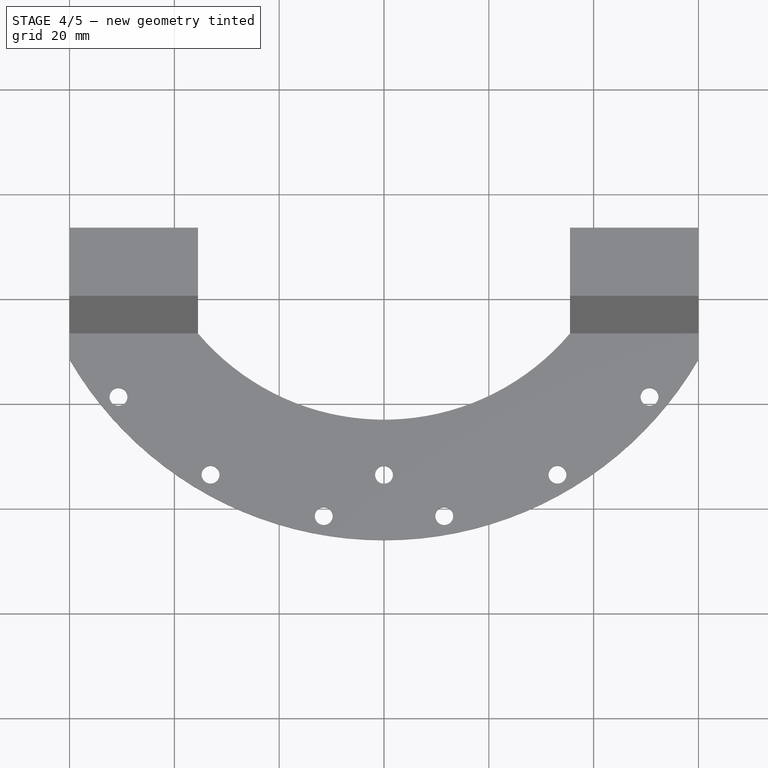
[diagram: stage 4 of 5 — top view after this stage's code; geometry added in this stage tinted green]
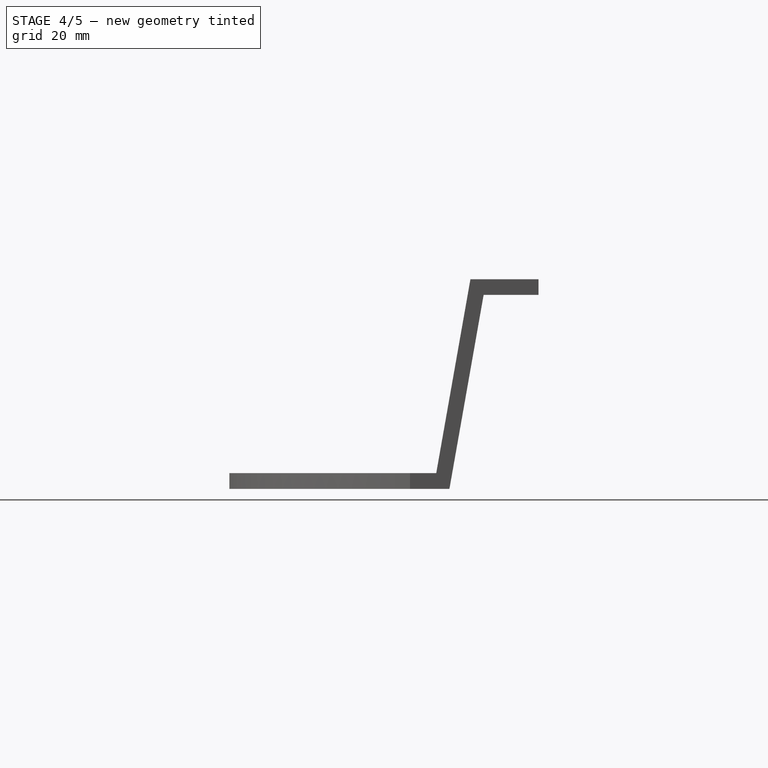
[diagram: stage 4 of 5 — right view after this stage's code; geometry added in this stage tinted green]
FEATURE [Sketcher::SketchObject] Sketch010
  ArcFitTolerance = 1e-06
  AttachmentSupport = -> [XZ_Plane002]
  ExternalBSplineMaxDegree = 5
  ExternalBSplineTolerance = 0.0001
  ExternalGeometry = -> [Binder001,Pocket003]
  FixShape = 1
  FullyConstrained = true
  InternalTolerance = 1e-06
  InvalidShape = false
  MakeInternals = false
  MapMode = 5
  Placement = pos=(0,0,0) rot=(1,0,0;1.5708rad)
  Support = -> [XZ_Plane002]
  TreeRank = 204
  ValidateShape = false
  sketch-geometry (4):
    g0: LineSegment StartX=-35.5 StartY=-6 StartZ=0 EndX=35.5 EndY=-6 EndZ=0
    g1: LineSegment StartX=35.5 StartY=-6 StartZ=0 EndX=35.5 EndY=-43 EndZ=0
    g2: LineSegment StartX=35.5 StartY=-43 StartZ=0 EndX=-35.5 EndY=-43 EndZ=0
    g3: LineSegment StartX=-35.5 StartY=-43 StartZ=0 EndX=-35.5 EndY=-6 EndZ=0
  constraints (11):
    c: Coincident(g0,g1)
    c: Coincident(g1,g2)
    c: Coincident(g2,g3)
    c: Coincident(g3,g0)
    c: Horizontal(g2)
    c: Vertical(g1)
    c: Vertical(g3)
    c: PointOnObject(g0,g-3)
    c: PointOnObject(g1,g-4)
    c: Symmetric(g0,g0,g-2)
    c: DistanceX(g0,g0) = 71
FEATURE [PartDesign::Pocket] Pocket004
  AddSubType = 1
  AlongSketchNormal = false
  AutoTaperInnerAngle = true
  BaseFeature = -> Pocket003
  CheckUpToFaceLimits = true
  ClaimChildren = false
  Direction = (0,1,-2e-16)
  Fit = 0
  FitJoin = 0
  FixShape = 1
  InnerFit = 0
  InnerFitJoin = 0
  InvalidShape = false
  Length = 5
  Length2 = 10
  Linearize = true
  NewSolid = false
  Profile = -> Sketch010
  ReferenceAxis = -> Sketch010 [N_Axis]
  Refine = true
  Reversed = true
  Suppress = false
  TaperInnerAngle = 0
  TaperInnerAngleRev = 0
  TreeRank = 205
  Type = 1
  ValidateShape = true
  _ProfileBasedVersion = 1
  _Version = 1
FEATURE [Sketcher::SketchObject] Sketch011
  ArcFitTolerance = 1e-06
  AttachmentSupport = -> [Pocket004]
  ExternalBSplineMaxDegree = 5
  ExternalBSplineTolerance = 0.0001
  ExternalGeometry = -> [Pocket004]
  FixShape = 1
  FullyConstrained = true
  InternalTolerance = 1e-06
  InvalidShape = false
  MakeInternals = false
  MapMode = 5
  Placement = pos=(9.8e-15,2.73e-14,-43) rot=(0,0,1;0rad)
  Support = -> [Pocket004]
  TreeRank = 206
  ValidateShape = false
  sketch-geometry (5):
    g0: ArcOfCircle CenterX=9.2e-15 CenterY=-176.524 CenterZ=0 NormalX=0 NormalY=0 NormalZ=1 AngleXU=0 Radius=46.4785 StartAngle=3.84322 EndAngle=5.58156
    g1: LineSegment [constr] StartX=-35.5 StartY=-206.524 StartZ=0 EndX=35.5 EndY=-206.524 EndZ=0
    g2: LineSegment StartX=35.5 StartY=-206.524 StartZ=0 EndX=35.5 EndY=-203.478 EndZ=0
    g3: LineSegment StartX=35.5 StartY=-203.478 StartZ=0 EndX=-35.5 EndY=-203.478 EndZ=0
    g4: LineSegment StartX=-35.5 StartY=-203.478 StartZ=0 EndX=-35.5 EndY=-206.524 EndZ=0
  constraints (13):
    c: Coincident(g0,g-3)
    c: Coincident(g0,g-4)
    c: Coincident(g1,g2)
    c: Coincident(g2,g3)
    c: Coincident(g3,g4)
    c: Coincident(g4,g1)
    c: Horizontal(g1)
    c: Horizontal(g3)
    c: Vertical(g2)
    c: Vertical(g4)
    c: Coincident(g1,g0)
    c: Coincident(g2,g-5)
    c: Horizontal(g0,g-6)
FEATURE [PartDesign::Pocket] Pocket005
  AddSubType = 1
  AlongSketchNormal = false
  AutoTaperInnerAngle = true
  BaseFeature = -> Pocket004
  CheckUpToFaceLimits = true
  ClaimChildren = false
  Direction = (2e-16,6e-16,-1)
  Fit = 0
  FitJoin = 0
  FixShape = 1
  InnerFit = 0
  InnerFitJoin = 0
  InvalidShape = false
  Length = 5
  Length2 = 10
  Linearize = true
  NewSolid = false
  Profile = -> Sketch011
  ReferenceAxis = -> Sketch011 [N_Axis]
  Suppress = false
  TaperInnerAngle = 0
  TaperInnerAngleRev = 0
  TreeRank = 207
  Type = 1
  ValidateShape = true
  _ProfileBasedVersion = 1
  _Version = 1
FEATURE [PartDesign::SubShapeBinder] Binder002  label="Binder002(SensorCage)"
  BindCopyOnChange = 0
  BindMode = 0
  ClaimChildren = false
  Context = -> Body002 [Binder002.]
  EdgeTolerance = 1e-06
  FillStyle = 0
  FixShape = 1
  Fuse = false
  InvalidShape = false
  MakeFace = true
  MergeEdges = true
  OffsetFill = false
  OffsetIntersection = false
  OffsetJoinType = 0
  OffsetOpenResult = false
  Outline = false
  PartialLoad = false
  Relative = true
  SplitEdges = false
  Support = -> [Body001]
  TightBound = false
  TreeRank = 209
  ValidateShape = false
  _Version = 8
FEATURE [Part::SubShapeBinder] Import  label="Import(Hole)"
  BindCopyOnChange = 0
  BindMode = 0
  ClaimChildren = false
  Context = -> Body002 [Import.]
  EdgeTolerance = 1e-06
  FillStyle = 0
  FixShape = 1
  Fuse = false
  InvalidShape = false
  MakeFace = false
  MergeEdges = true
  OffsetFill = false
  OffsetIntersection = false
  OffsetJoinType = 0
  OffsetOpenResult = false
  Outline = false
  PartialLoad = false
  Relative = true
  SplitEdges = false
  Support = -> [Body001[Hole.]]
  TightBound = false
  TreeRank = 211
  ValidateShape = false
  _Version = 8
FEATURE [Sketcher::SketchObject] Sketch012
  ArcFitTolerance = 1e-06
  AttachmentSupport = -> [Pocket005]
  ExternalBSplineMaxDegree = 5
  ExternalBSplineTolerance = 0.0001
  ExternalGeometry = -> [Pocket005,Binder002,Import]
  FixShape = 1
  FullyConstrained = true
  InternalTolerance = 1e-06
  InvalidShape = false
  MakeInternals = false
  MapMode = 5
  Placement = pos=(9.8e-15,2.73e-14,-43) rot=(0,0,1;0rad)
  Support = -> [Pocket005]
  TreeRank = 208
  ValidateShape = false
  sketch-geometry (16):
    g0: ArcOfCircle [constr] CenterX=1.11e-14 CenterY=-176.524 CenterZ=0 NormalX=0 NormalY=0 NormalZ=1 AngleXU=0 Radius=65.8873 StartAngle=3.70162 EndAngle=5.72316
    g1: LineSegment [constr] StartX=-11.5 StartY=-3.4 StartZ=0 EndX=11.5 EndY=-3.4 EndZ=0
    g2: Circle CenterX=-11.5 CenterY=-241.4 CenterZ=0 NormalX=0 NormalY=0 NormalZ=1 AngleXU=0 Radius=1.7
    g3: Circle CenterX=11.5 CenterY=-241.4 CenterZ=0 NormalX=0 NormalY=0 NormalZ=1 AngleXU=0 Radius=1.7
    g4: LineSegment [constr] StartX=-11.5 StartY=-241.4 StartZ=0 EndX=11.5 EndY=-241.4 EndZ=0
    g5: LineSegment [constr] StartX=12 StartY=3.1 StartZ=0 EndX=12 EndY=-9.9 EndZ=0
    g6: LineSegment [constr] StartX=11.5 StartY=-234.9 StartZ=0 EndX=11.5 EndY=-247.9 EndZ=0
    g7: Circle CenterX=-33.0986 CenterY=-233.494 CenterZ=0 NormalX=0 NormalY=0 NormalZ=1 AngleXU=0 Radius=1.7
    g8: Circle CenterX=-50.664 CenterY=-218.646 CenterZ=0 NormalX=0 NormalY=0 NormalZ=1 AngleXU=0 Radius=1.7
    g9: Circle [constr] CenterX=-62.0555 CenterY=-198.666 CenterZ=0 NormalX=0 NormalY=0 NormalZ=1 AngleXU=0 Radius=1.7
    g10: Circle CenterX=33.0986 CenterY=-233.494 CenterZ=0 NormalX=0 NormalY=0 NormalZ=1 AngleXU=0 Radius=1.7
    g11: Circle CenterX=50.664 CenterY=-218.646 CenterZ=0 NormalX=0 NormalY=0 NormalZ=1 AngleXU=0 Radius=1.7
    g12: Circle [constr] CenterX=62.0555 CenterY=-198.666 CenterZ=0 NormalX=0 NormalY=0 NormalZ=1 AngleXU=0 Radius=1.7
    g13: LineSegment [constr] StartX=-11.5 StartY=-241.4 StartZ=0 EndX=-33.0986 EndY=-233.494 EndZ=0
    g14: LineSegment [constr] StartX=-33.0986 StartY=-233.494 StartZ=0 EndX=-50.664 EndY=-218.646 EndZ=0
    g15: LineSegment [constr] StartX=-50.664 StartY=-218.646 StartZ=0 EndX=-62.0555 EndY=-198.666 EndZ=0
  constraints (40):
    c: Coincident(g4,g2)
    c: Coincident(g4,g3)
    c: Equal(g4,g1)
    c: Equal(g2,g3)
    c: Symmetric(g2,g3,g-2)
    c: Coincident(g5,g-5)
    c: Coincident(g5,g-6)
    c: Symmetric(g6,g6,g4)
    c: PointOnObject(g3,g6)
    c: DistanceY(g2,g-1) = 241.4
    c: Horizontal(g0,g-4)
    c: PointOnObject(g2,g0)
    c: PointOnObject(g7,g0)
    c: PointOnObject(g8,g0)
    c: PointOnObject(g9,g0)
    c: Equal(g12,g11)
    c: Equal(g11,g10)
    c: Equal(g10,g3)
    c: Equal(g3,g7)
    c: Equal(g7,g8)
    c: Equal(g8,g9)
    c: Symmetric(g9,g12,g-2)
    c: Symmetric(g8,g11,g-2)
    c: Symmetric(g7,g10,g-2)
    c: Coincident(g13,g2)
    c: Coincident(g13,g7)
    c: Coincident(g14,g7)
    c: Coincident(g14,g8)
    c: Coincident(g15,g8)
    c: Coincident(g15,g9)
    c: Equal(g4,g13)
    c: Equal(g13,g14)
    c: Equal(g14,g15)
    c: Equal(g6,g5)
    c: Coincident(g-7,g1)
    c: Coincident(g-8,g1)
    c: Equal(g-7,g3)
    c: PointOnObject(g3,g0)
    c: Horizontal(g-4,g0)
    c: Horizontal(g-9,g0)
FEATURE [PartDesign::Pocket] Pocket006
  AddSubType = 1
  AlongSketchNormal = false
  AutoTaperInnerAngle = true
  BaseFeature = -> Pocket005
  CheckUpToFaceLimits = true
  ClaimChildren = false
  Direction = (2e-16,6e-16,-1)
  Fit = 0
  FitJoin = 0
  FixShape = 1
  InnerFit = 0
  InnerFitJoin = 0
  InvalidShape = false
  Length = 5
  Length2 = 10
  Linearize = true
  NewSolid = false
  Profile = -> Sketch012
  ReferenceAxis = -> Sketch012 [N_Axis]
  Suppress = false
  TaperInnerAngle = 0
  TaperInnerAngleRev = 0
  TreeRank = 210
  Type = 1
  ValidateShape = true
  _ProfileBasedVersion = 1
  _Version = 1
FEATURE [Sketcher::SketchObject] Sketch013
  ArcFitTolerance = 1e-06
  AttachmentSupport = -> [Pocket006]
  ExternalBSplineMaxDegree = 5
  ExternalBSplineTolerance = 0.0001
  ExternalGeometry = -> [Pocket006]
  FixShape = 1
  FullyConstrained = true
  InternalTolerance = 1e-06
  InvalidShape = false
  MakeInternals = false
  MapMode = 5
  Placement = pos=(9.8e-15,2.73e-14,-43) rot=(0,0,1;0rad)
  Support = -> [Pocket006]
  TreeRank = 212
  ValidateShape = false
  sketch-geometry (1):
    g0: Circle CenterX=0 CenterY=-233.524 CenterZ=0 NormalX=0 NormalY=0 NormalZ=1 AngleXU=0 Radius=1.7
  constraints (3):
    c: PointOnObject(g0,g-2)
    c: Equal(g0,g-4)
    c: DistanceY(g0,g-3) = 57
FEATURE [PartDesign::Pocket] Pocket007
  AddSubType = 1
  AlongSketchNormal = false
  AutoTaperInnerAngle = true
  BaseFeature = -> Pocket006
  CheckUpToFaceLimits = true
  ClaimChildren = false
  Direction = (2e-16,6e-16,-1)
  Fit = 0
  FitJoin = 0
  FixShape = 1
  InnerFit = 0
  InnerFitJoin = 0
  InvalidShape = false
  Length = 5
  Length2 = 10
  Linearize = true
  NewSolid = false
  Profile = -> Sketch013
  ReferenceAxis = -> Sketch013 [N_Axis]
  Suppress = false
  TaperInnerAngle = 0
  TaperInnerAngleRev = 0
  TreeRank = 213
  Type = 1
  ValidateShape = true
  _ProfileBasedVersion = 1
  _Version = 1
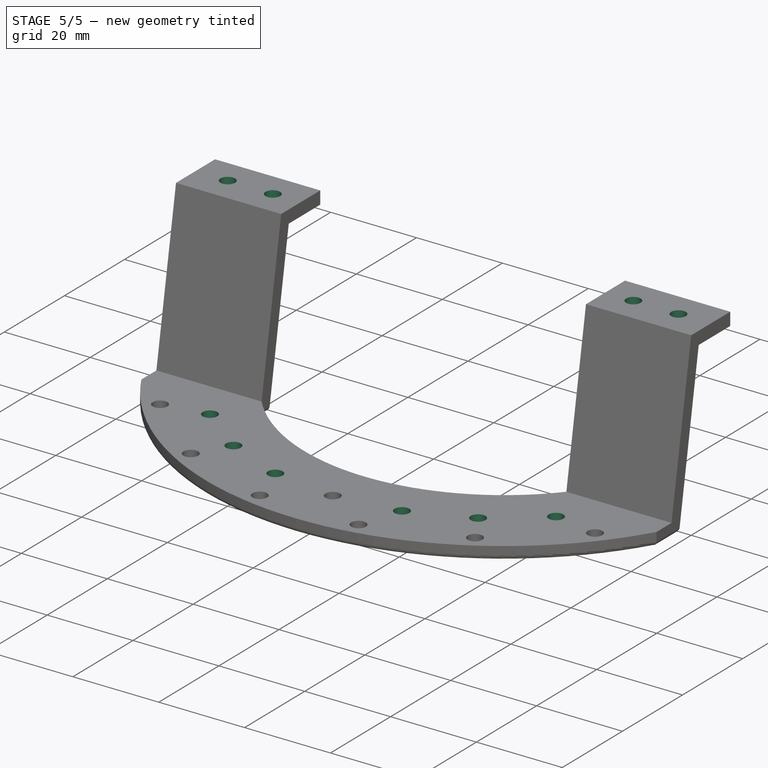
[diagram: stage 5 of 5 — iso view after this stage's code; geometry added in this stage tinted green]
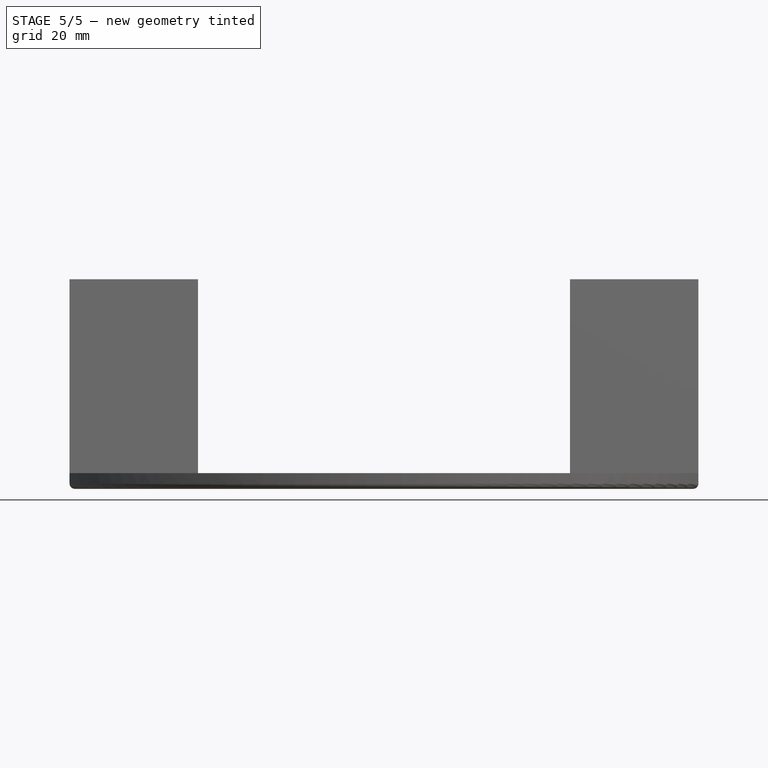
[diagram: stage 5 of 5 — front view after this stage's code; geometry added in this stage tinted green]
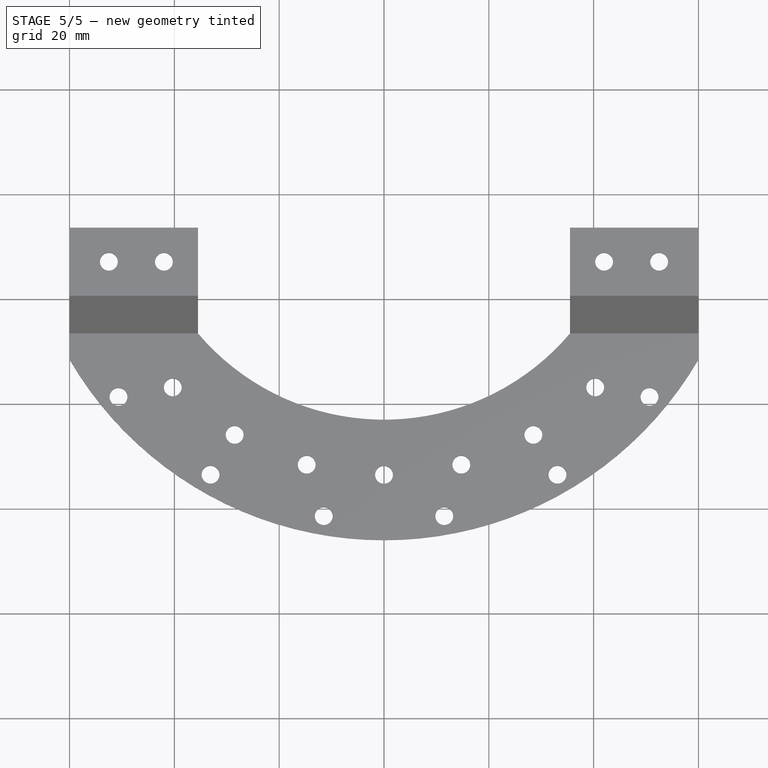
[diagram: stage 5 of 5 — top view after this stage's code; geometry added in this stage tinted green]
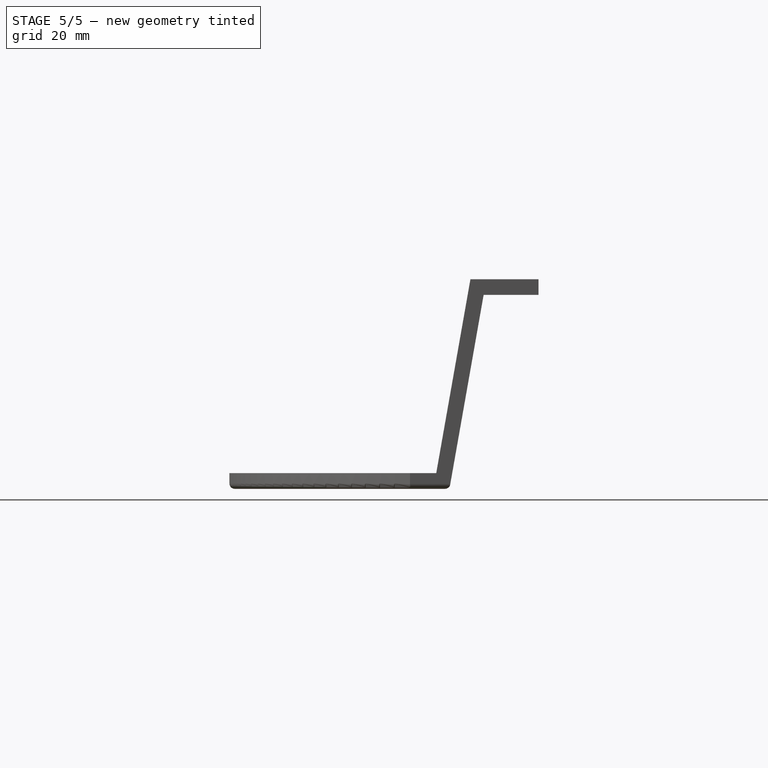
[diagram: stage 5 of 5 — right view after this stage's code; geometry added in this stage tinted green]
FEATURE [PartDesign::Line] DatumLine
  AttacherType = Attacher::AttachEngineLine
  AttachmentSupport = -> [Pocket007]
  FixShape = 1
  InvalidShape = false
  Length = 40
  MapMode = 19
  MinimumLength = 10
  Placement = pos=(0,-176.524,-43) rot=(0,0,1;3.84322rad)
  ResizeMode = 0
  Support = -> [Pocket007]
  TreeRank = 214
  ValidateShape = false
FEATURE [PartDesign::PolarPattern] PolarPattern001
  AddSubType = 0
  Angle = 45
  Axis = -> DatumLine
  BaseFeature = -> Pocket007
  CopyShape = false
  FixShape = 1
  InvalidShape = false
  NewSolid = false
  Occurrences = 4
  OriginalSubs = -> [Pocket007]
  Originals = -> [Pocket007]
  ParallelTransform = true
  Reversed = true
  SubTransform = true
  Suppress = false
  TreeRank = 216
  ValidateShape = true
  _Version = 3
FEATURE [PartDesign::PolarPattern] PolarPattern
  AddSubType = 0
  Angle = 45
  Axis = -> DatumLine
  BaseFeature = -> PolarPattern001
  CopyShape = false
  FixShape = 1
  InvalidShape = false
  NewSolid = false
  Occurrences = 4
  OriginalSubs = -> [Pocket007]
  Originals = -> [Pocket007]
  ParallelTransform = true
  SubTransform = true
  Suppress = false
  TreeRank = 215
  ValidateShape = true
  _Version = 3
FEATURE [Sketcher::SketchObject] Sketch014
  ArcFitTolerance = 1e-06
  AttachmentSupport = -> [PolarPattern]
  ExternalBSplineMaxDegree = 5
  ExternalBSplineTolerance = 0.0001
  ExternalGeometry = -> [Binder001]
  FixShape = 1
  FullyConstrained = true
  InternalTolerance = 1e-06
  InvalidShape = false
  MakeInternals = false
  MapMode = 5
  Placement = pos=(1.7e-15,3e-16,-6) rot=(0,0,1;0rad)
  Support = -> [PolarPattern]
  TreeRank = 217
  ValidateShape = false
FEATURE [PartDesign::Pocket] Pocket008
  AddSubType = 1
  AlongSketchNormal = false
  AutoTaperInnerAngle = true
  BaseFeature = -> PolarPattern
  CheckUpToFaceLimits = true
  ClaimChildren = false
  Direction = (3e-16,1e-16,-1)
  Fit = 0
  FitJoin = 0
  FixShape = 1
  InnerFit = 0
  InnerFitJoin = 0
  InvalidShape = false
  Length = 5
  Length2 = 10
  Linearize = true
  NewSolid = false
  Profile = -> Sketch014
  ReferenceAxis = -> Sketch014 [N_Axis]
  Refine = true
  Suppress = false
  TaperInnerAngle = 0
  TaperInnerAngleRev = 0
  TreeRank = 218
  Type = 1
  ValidateShape = true
  _ProfileBasedVersion = 1
  _Version = 1
FEATURE [PartDesign::Fillet] Fillet001
  AddSubType = 0
  Base = -> Pocket008 [Edge22,Edge24,Edge26,Edge25,Edge27,Edge23,Edge16,Edge8]
  BaseFeature = -> Pocket008
  FixShape = 1
  InvalidShape = false
  NewSolid = false
  Radius = 1
  SupportTransform = false
  Suppress = false
  TreeRank = 219
  UseAllEdges = false
  ValidateShape = true
FEATURE [PartDesign::Body] Body002  label="SensorBar"
  AutoGroupSolids = false
  ClaimAllChildren = false
  ExportMode = 0
  FixShape = 1
  Group = -> [Binder001,Sketch008,Pad004,Sketch009,Pocket003,Sketch010,Pocket004,Sketch011,Pocket005,Sketch012,Binder002,Pocket006,Import,Sketch013,Pocket007,DatumLine,PolarPattern001,PolarPattern,Sketch014,Pocket008,Fillet001]
  InvalidShape = false
  Origin = -> Origin002
  Tip = -> Fillet001
  TreeRank = 48
  ValidateShape = false
  _ExportChildren = -> [Binder001,Pad004,Pocket003,Pocket004,Pocket005,Binder002,Pocket006,Import,Pocket007,DatumLine,PolarPattern001,PolarPattern,Pocket008,Fillet001]
  _GroupVersion = 1
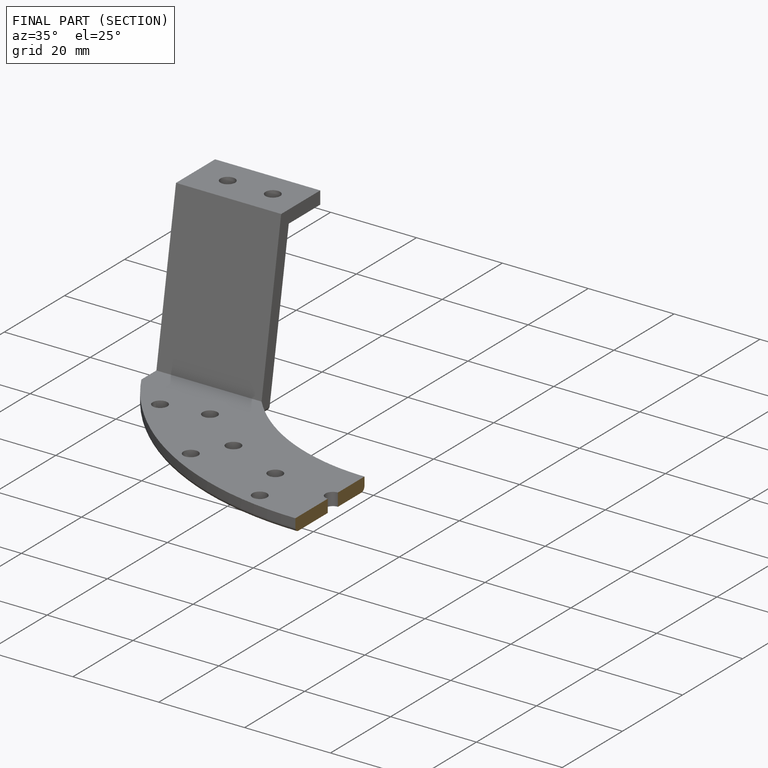
[diagram: finished part — half-section view (interior)]
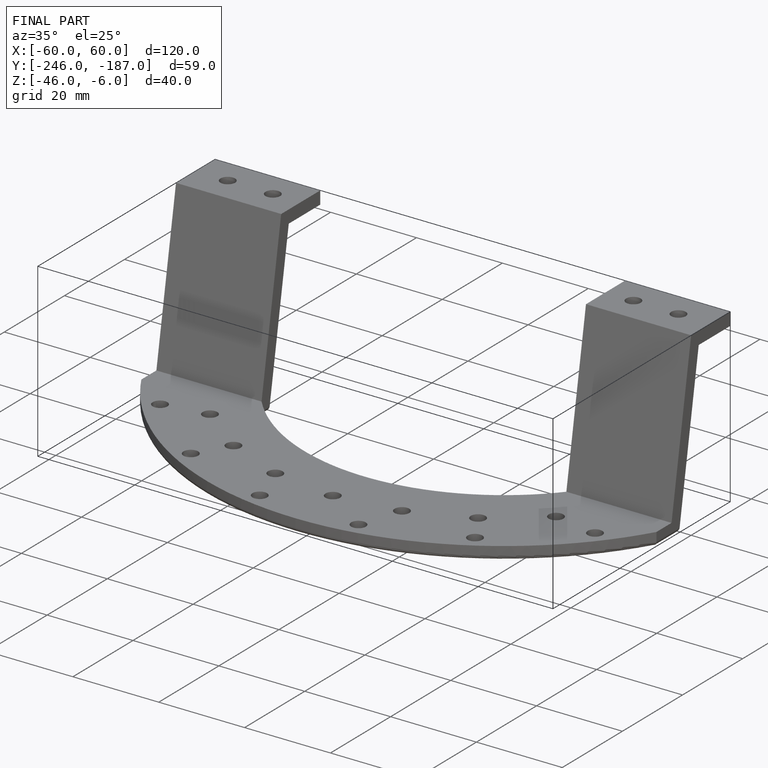
[diagram: finished part — iso view with bounding-box wireframe]
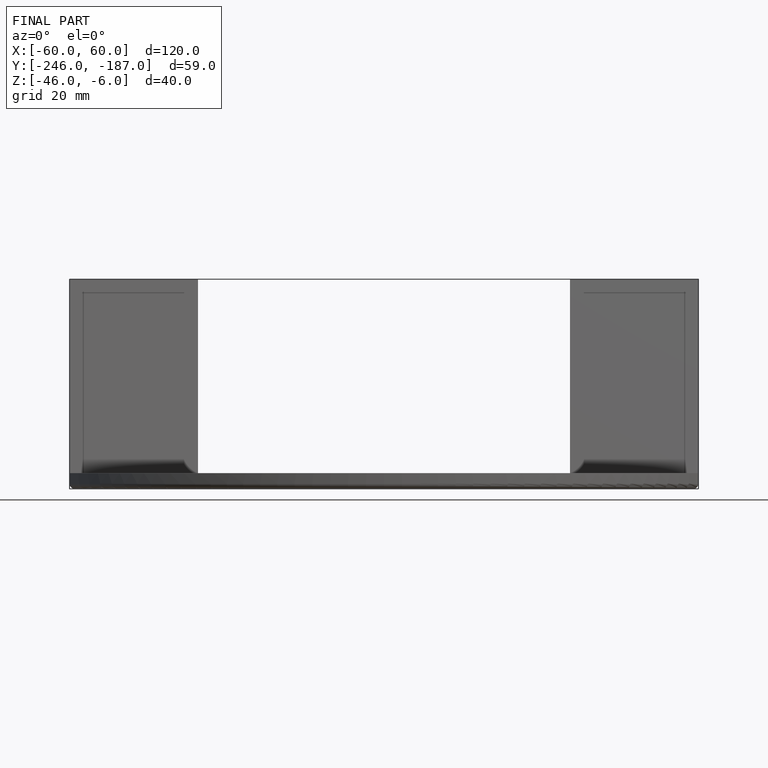
[diagram: finished part — front view with bounding-box wireframe]
